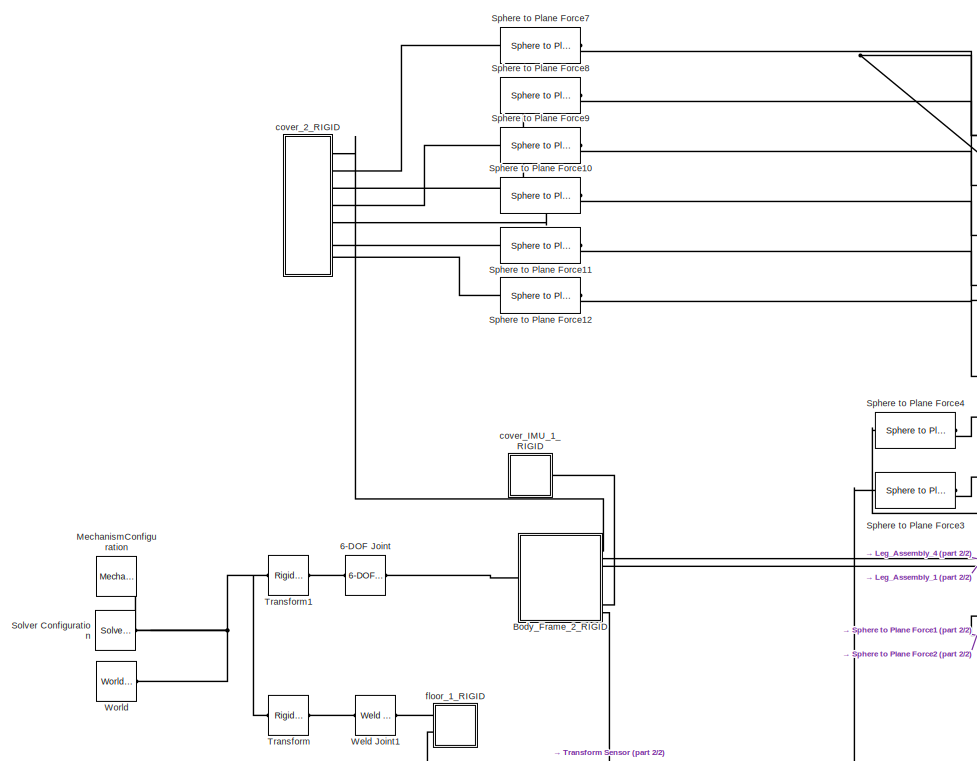
[diagram: root canvas - part 1/2, central region]
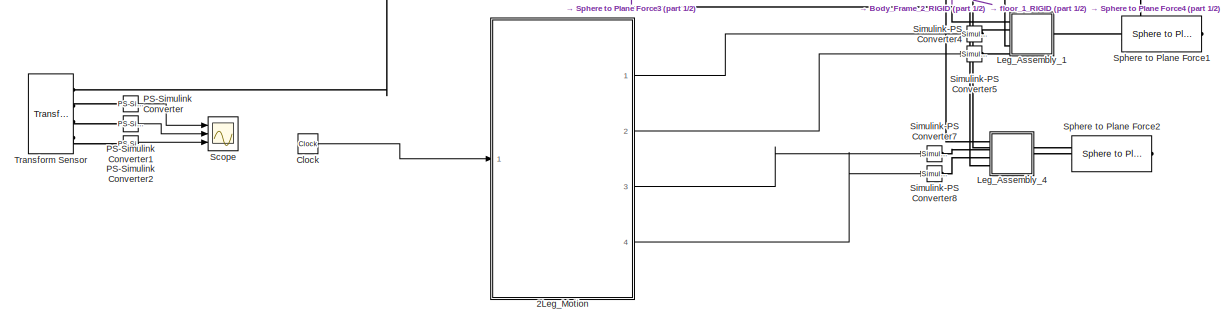
[diagram: root canvas - part 2/2, full width, bottom band]
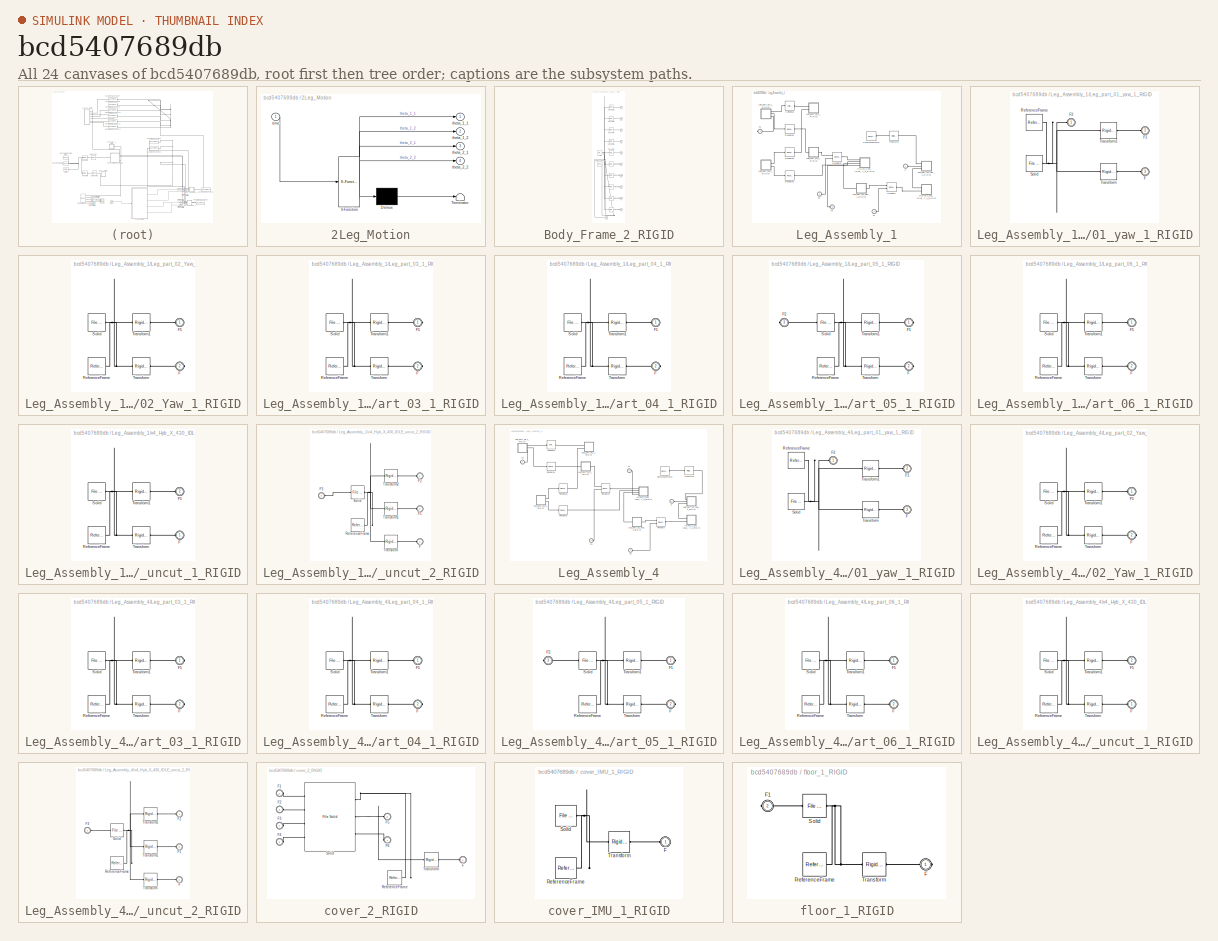
[diagram: thumbnail index - all 24 canvases of the model, root first then tree order]
MODEL slx_bcd5407689db
KIND model
CONFIG AbsTol = auto
CONFIG EnableMultiTasking = off
CONFIG FixedStep = 0.001
CONFIG InitFcn = SnapbotParameters_2leg;
CONFIG MaxStep = auto
CONFIG MinStep = auto
CONFIG PreLoadFcn = startup_Contact_Forces;
CONFIG RelTol = 1e-3
CONFIG SampleTimeConstraint = Unconstrained
CONFIG Solver = FixedStepAuto
CONFIG SolverName = FixedStepAuto
CONFIG StartTime = 0.0
CONFIG StopTime = 15
WORKSPACE source: external: MATLAB File  (data not in archive)
BLOCK [SubSystem] 2Leg_Motion
  ErrorFcn = Stateflow.Translate.translate
  PermitHierarchicalResolution = ExplicitOnly
  Ports = [1, 4]
  RequestExecContextInheritance = off
  SFBlockType = MATLAB Function
  TreatAsAtomicUnit = on
BLOCK [Demux] 2Leg_Motion/ Demux 
  Outputs = 1
  Ports = [1, 1]
BLOCK [S-Function] 2Leg_Motion/ SFunction 
  EnableBusSupport = on
  FunctionName = sf_sfun
  PortCounts = [1 5]
  Ports = [1, 5]
  SFcnIsStateOwnerBlock = off
  SFunctionDeploymentMode = off
  Tag = Stateflow S-Function 2
BLOCK [Terminator] 2Leg_Motion/ Terminator 
BLOCK [Outport] 2Leg_Motion/theta_1_1
  IconDisplay = Port number
BLOCK [Outport] 2Leg_Motion/theta_1_2
  IconDisplay = Port number
  Port = 2
BLOCK [Outport] 2Leg_Motion/theta_2_1
  IconDisplay = Port number
  Port = 3
BLOCK [Outport] 2Leg_Motion/theta_2_2
  IconDisplay = Port number
  Port = 4
BLOCK [Inport] 2Leg_Motion/time
  IconDisplay = Port number
BLOCK [Reference] 6-DOF Joint  REF=sm_lib/Joints/6-DOF Joint
  Ports = [0, 0, 0, 0, 0, 1, 1]
  SourceBlock = sm_lib/Joints/6-DOF Joint
  SourceProductBaseCode = MS
  SourceProductName = Simscape Multibody
  SourceType = 6-DOF Joint
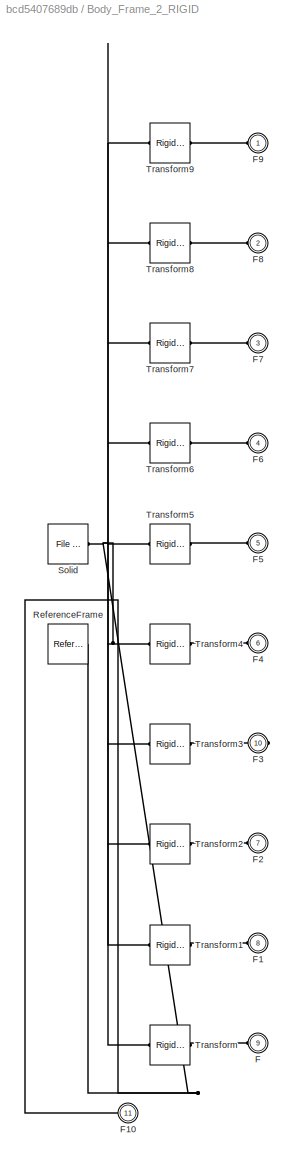
BLOCK [SubSystem] Body_Frame_2_RIGID
  Ports = [0, 0, 0, 0, 0, 10, 1]
  RequestExecContextInheritance = off
BLOCK [PMIOPort] Body_Frame_2_RIGID/F
  Port = 9
  Side = Left
BLOCK [PMIOPort] Body_Frame_2_RIGID/F1
  Port = 8
  Side = Left
BLOCK [PMIOPort] Body_Frame_2_RIGID/F10
  Port = 11
  Side = Left
BLOCK [PMIOPort] Body_Frame_2_RIGID/F2
  Port = 7
  Side = Left
BLOCK [PMIOPort] Body_Frame_2_RIGID/F3
  Port = 10
  Side = Right
BLOCK [PMIOPort] Body_Frame_2_RIGID/F4
  Port = 6
  Side = Left
BLOCK [PMIOPort] Body_Frame_2_RIGID/F5
  Port = 5
  Side = Left
BLOCK [PMIOPort] Body_Frame_2_RIGID/F6
  Port = 4
  Side = Left
BLOCK [PMIOPort] Body_Frame_2_RIGID/F7
  Port = 3
  Side = Left
BLOCK [PMIOPort] Body_Frame_2_RIGID/F8
  Port = 2
  Side = Left
BLOCK [PMIOPort] Body_Frame_2_RIGID/F9
  Side = Left
BLOCK [Reference] Body_Frame_2_RIGID/ReferenceFrame  REF=sm_lib/Frames and
Transforms/Reference
Frame
  Ports = [0, 0, 0, 0, 0, 0, 1]
  SourceBlock = sm_lib/Frames and\nTransforms/Reference\nFrame
  SourceProductBaseCode = MS
  SourceProductName = Simscape Multibody
  SourceType = Reference\nFrame
BLOCK [Reference] Body_Frame_2_RIGID/Solid  REF=sm_lib/Body Elements/File Solid
  Ports = [0, 0, 0, 0, 0, 0, 1]
  SourceBlock = sm_lib/Body Elements/File Solid
  SourceProductBaseCode = MS
  SourceProductName = Simscape Multibody
  SourceType = File Solid
BLOCK [Reference] Body_Frame_2_RIGID/Transform  REF=sm_lib/Frames and
Transforms/Rigid
Transform
  Ports = [0, 0, 0, 0, 0, 1, 1]
  SourceBlock = sm_lib/Frames and\nTransforms/Rigid\nTransform
  SourceProductBaseCode = MS
  SourceProductName = Simscape Multibody
  SourceType = Rigid\nTransform
BLOCK [Reference] Body_Frame_2_RIGID/Transform1  REF=sm_lib/Frames and
Transforms/Rigid
Transform
  Ports = [0, 0, 0, 0, 0, 1, 1]
  SourceBlock = sm_lib/Frames and\nTransforms/Rigid\nTransform
  SourceProductBaseCode = MS
  SourceProductName = Simscape Multibody
  SourceType = Rigid\nTransform
BLOCK [Reference] Body_Frame_2_RIGID/Transform2  REF=sm_lib/Frames and
Transforms/Rigid
Transform
  Ports = [0, 0, 0, 0, 0, 1, 1]
  SourceBlock = sm_lib/Frames and\nTransforms/Rigid\nTransform
  SourceProductBaseCode = MS
  SourceProductName = Simscape Multibody
  SourceType = Rigid\nTransform
BLOCK [Reference] Body_Frame_2_RIGID/Transform3  REF=sm_lib/Frames and
Transforms/Rigid
Transform
  Ports = [0, 0, 0, 0, 0, 1, 1]
  SourceBlock = sm_lib/Frames and\nTransforms/Rigid\nTransform
  SourceProductBaseCode = MS
  SourceProductName = Simscape Multibody
  SourceType = Rigid\nTransform
BLOCK [Reference] Body_Frame_2_RIGID/Transform4  REF=sm_lib/Frames and
Transforms/Rigid
Transform
  Ports = [0, 0, 0, 0, 0, 1, 1]
  SourceBlock = sm_lib/Frames and\nTransforms/Rigid\nTransform
  SourceProductBaseCode = MS
  SourceProductName = Simscape Multibody
  SourceType = Rigid\nTransform
BLOCK [Reference] Body_Frame_2_RIGID/Transform5  REF=sm_lib/Frames and
Transforms/Rigid
Transform
  Ports = [0, 0, 0, 0, 0, 1, 1]
  SourceBlock = sm_lib/Frames and\nTransforms/Rigid\nTransform
  SourceProductBaseCode = MS
  SourceProductName = Simscape Multibody
  SourceType = Rigid\nTransform
BLOCK [Reference] Body_Frame_2_RIGID/Transform6  REF=sm_lib/Frames and
Transforms/Rigid
Transform
  Ports = [0, 0, 0, 0, 0, 1, 1]
  SourceBlock = sm_lib/Frames and\nTransforms/Rigid\nTransform
  SourceProductBaseCode = MS
  SourceProductName = Simscape Multibody
  SourceType = Rigid\nTransform
BLOCK [Reference] Body_Frame_2_RIGID/Transform7  REF=sm_lib/Frames and
Transforms/Rigid
Transform
  Ports = [0, 0, 0, 0, 0, 1, 1]
  SourceBlock = sm_lib/Frames and\nTransforms/Rigid\nTransform
  SourceProductBaseCode = MS
  SourceProductName = Simscape Multibody
  SourceType = Rigid\nTransform
BLOCK [Reference] Body_Frame_2_RIGID/Transform8  REF=sm_lib/Frames and
Transforms/Rigid
Transform
  Ports = [0, 0, 0, 0, 0, 1, 1]
  SourceBlock = sm_lib/Frames and\nTransforms/Rigid\nTransform
  SourceProductBaseCode = MS
  SourceProductName = Simscape Multibody
  SourceType = Rigid\nTransform
BLOCK [Reference] Body_Frame_2_RIGID/Transform9  REF=sm_lib/Frames and
Transforms/Rigid
Transform
  Ports = [0, 0, 0, 0, 0, 1, 1]
  SourceBlock = sm_lib/Frames and\nTransforms/Rigid\nTransform
  SourceProductBaseCode = MS
  SourceProductName = Simscape Multibody
  SourceType = Rigid\nTransform
BLOCK [Clock] Clock
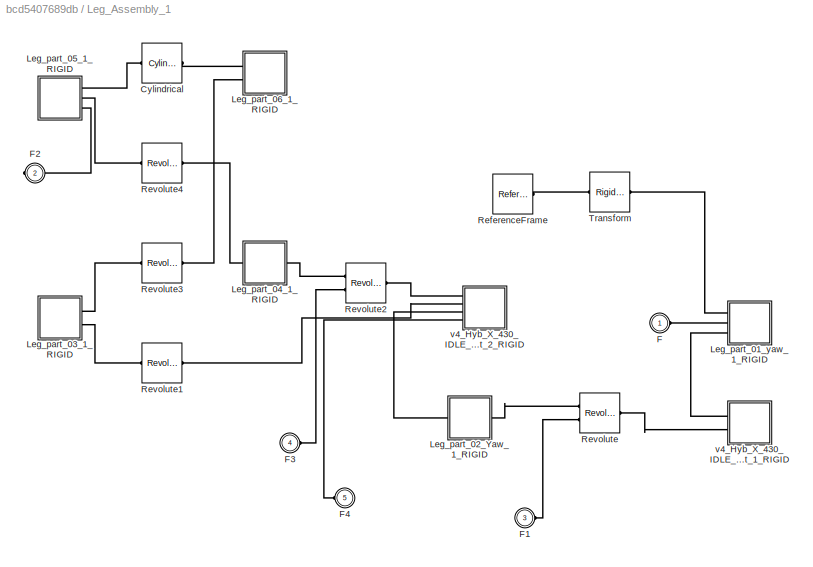
BLOCK [SubSystem] Leg_Assembly_1
  Ports = [0, 0, 0, 0, 0, 4, 1]
  RequestExecContextInheritance = off
BLOCK [Reference] Leg_Assembly_1/Cylindrical  REF=sm_lib/Joints/Cylindrical
Joint
  Ports = [0, 0, 0, 0, 0, 1, 1]
  SourceBlock = sm_lib/Joints/Cylindrical\nJoint
  SourceProductBaseCode = MS
  SourceProductName = Simscape Multibody
  SourceType = Cylindrical\nJoint
BLOCK [PMIOPort] Leg_Assembly_1/F
  Side = Left
BLOCK [PMIOPort] Leg_Assembly_1/F1
  Port = 3
  Side = Left
BLOCK [PMIOPort] Leg_Assembly_1/F2
  Port = 2
  Side = Right
BLOCK [PMIOPort] Leg_Assembly_1/F3
  Port = 4
  Side = Left
BLOCK [PMIOPort] Leg_Assembly_1/F4
  Port = 5
  Side = Left
BLOCK [SubSystem] Leg_Assembly_1/Leg_part_01_yaw_1_RIGID
  Ports = [0, 0, 0, 0, 0, 3]
  RequestExecContextInheritance = off
BLOCK [PMIOPort] Leg_Assembly_1/Leg_part_01_yaw_1_RIGID/F
  Port = 3
  Side = Left
BLOCK [PMIOPort] Leg_Assembly_1/Leg_part_01_yaw_1_RIGID/F1
  Port = 2
  Side = Left
BLOCK [PMIOPort] Leg_Assembly_1/Leg_part_01_yaw_1_RIGID/F2
  Side = Left
BLOCK [Reference] Leg_Assembly_1/Leg_part_01_yaw_1_RIGID/ReferenceFrame  REF=sm_lib/Frames and
Transforms/Reference
Frame
  Ports = [0, 0, 0, 0, 0, 0, 1]
  SourceBlock = sm_lib/Frames and\nTransforms/Reference\nFrame
  SourceProductBaseCode = MS
  SourceProductName = Simscape Multibody
  SourceType = Reference\nFrame
BLOCK [Reference] Leg_Assembly_1/Leg_part_01_yaw_1_RIGID/Solid  REF=sm_lib/Body Elements/File Solid
  Ports = [0, 0, 0, 0, 0, 0, 1]
  SourceBlock = sm_lib/Body Elements/File Solid
  SourceProductBaseCode = MS
  SourceProductName = Simscape Multibody
  SourceType = File Solid
BLOCK [Reference] Leg_Assembly_1/Leg_part_01_yaw_1_RIGID/Transform  REF=sm_lib/Frames and
Transforms/Rigid
Transform
  Ports = [0, 0, 0, 0, 0, 1, 1]
  SourceBlock = sm_lib/Frames and\nTransforms/Rigid\nTransform
  SourceProductBaseCode = MS
  SourceProductName = Simscape Multibody
  SourceType = Rigid\nTransform
BLOCK [Reference] Leg_Assembly_1/Leg_part_01_yaw_1_RIGID/Transform1  REF=sm_lib/Frames and
Transforms/Rigid
Transform
  Ports = [0, 0, 0, 0, 0, 1, 1]
  SourceBlock = sm_lib/Frames and\nTransforms/Rigid\nTransform
  SourceProductBaseCode = MS
  SourceProductName = Simscape Multibody
  SourceType = Rigid\nTransform
BLOCK [SubSystem] Leg_Assembly_1/Leg_part_02_Yaw_1_RIGID
  Ports = [0, 0, 0, 0, 0, 1, 1]
  RequestExecContextInheritance = off
BLOCK [PMIOPort] Leg_Assembly_1/Leg_part_02_Yaw_1_RIGID/F
  Port = 2
  Side = Right
BLOCK [PMIOPort] Leg_Assembly_1/Leg_part_02_Yaw_1_RIGID/F1
  Side = Left
BLOCK [Reference] Leg_Assembly_1/Leg_part_02_Yaw_1_RIGID/ReferenceFrame  REF=sm_lib/Frames and
Transforms/Reference
Frame
  Ports = [0, 0, 0, 0, 0, 0, 1]
  SourceBlock = sm_lib/Frames and\nTransforms/Reference\nFrame
  SourceProductBaseCode = MS
  SourceProductName = Simscape Multibody
  SourceType = Reference\nFrame
BLOCK [Reference] Leg_Assembly_1/Leg_part_02_Yaw_1_RIGID/Solid  REF=sm_lib/Body Elements/File Solid
  Ports = [0, 0, 0, 0, 0, 0, 1]
  SourceBlock = sm_lib/Body Elements/File Solid
  SourceProductBaseCode = MS
  SourceProductName = Simscape Multibody
  SourceType = File Solid
BLOCK [Reference] Leg_Assembly_1/Leg_part_02_Yaw_1_RIGID/Transform  REF=sm_lib/Frames and
Transforms/Rigid
Transform
  Ports = [0, 0, 0, 0, 0, 1, 1]
  SourceBlock = sm_lib/Frames and\nTransforms/Rigid\nTransform
  SourceProductBaseCode = MS
  SourceProductName = Simscape Multibody
  SourceType = Rigid\nTransform
BLOCK [Reference] Leg_Assembly_1/Leg_part_02_Yaw_1_RIGID/Transform1  REF=sm_lib/Frames and
Transforms/Rigid
Transform
  Ports = [0, 0, 0, 0, 0, 1, 1]
  SourceBlock = sm_lib/Frames and\nTransforms/Rigid\nTransform
  SourceProductBaseCode = MS
  SourceProductName = Simscape Multibody
  SourceType = Rigid\nTransform
BLOCK [SubSystem] Leg_Assembly_1/Leg_part_03_1_RIGID
  Ports = [0, 0, 0, 0, 0, 0, 2]
  RequestExecContextInheritance = off
BLOCK [PMIOPort] Leg_Assembly_1/Leg_part_03_1_RIGID/F
  Port = 2
  Side = Right
BLOCK [PMIOPort] Leg_Assembly_1/Leg_part_03_1_RIGID/F1
  Side = Right
BLOCK [Reference] Leg_Assembly_1/Leg_part_03_1_RIGID/ReferenceFrame  REF=sm_lib/Frames and
Transforms/Reference
Frame
  Ports = [0, 0, 0, 0, 0, 0, 1]
  SourceBlock = sm_lib/Frames and\nTransforms/Reference\nFrame
  SourceProductBaseCode = MS
  SourceProductName = Simscape Multibody
  SourceType = Reference\nFrame
BLOCK [Reference] Leg_Assembly_1/Leg_part_03_1_RIGID/Solid  REF=sm_lib/Body Elements/File Solid
  Ports = [0, 0, 0, 0, 0, 0, 1]
  SourceBlock = sm_lib/Body Elements/File Solid
  SourceProductBaseCode = MS
  SourceProductName = Simscape Multibody
  SourceType = File Solid
BLOCK [Reference] Leg_Assembly_1/Leg_part_03_1_RIGID/Transform  REF=sm_lib/Frames and
Transforms/Rigid
Transform
  Ports = [0, 0, 0, 0, 0, 1, 1]
  SourceBlock = sm_lib/Frames and\nTransforms/Rigid\nTransform
  SourceProductBaseCode = MS
  SourceProductName = Simscape Multibody
  SourceType = Rigid\nTransform
BLOCK [Reference] Leg_Assembly_1/Leg_part_03_1_RIGID/Transform1  REF=sm_lib/Frames and
Transforms/Rigid
Transform
  Ports = [0, 0, 0, 0, 0, 1, 1]
  SourceBlock = sm_lib/Frames and\nTransforms/Rigid\nTransform
  SourceProductBaseCode = MS
  SourceProductName = Simscape Multibody
  SourceType = Rigid\nTransform
BLOCK [SubSystem] Leg_Assembly_1/Leg_part_04_1_RIGID
  Ports = [0, 0, 0, 0, 0, 1, 1]
  RequestExecContextInheritance = off
BLOCK [PMIOPort] Leg_Assembly_1/Leg_part_04_1_RIGID/F
  Port = 2
  Side = Right
BLOCK [PMIOPort] Leg_Assembly_1/Leg_part_04_1_RIGID/F1
  Side = Left
BLOCK [Reference] Leg_Assembly_1/Leg_part_04_1_RIGID/ReferenceFrame  REF=sm_lib/Frames and
Transforms/Reference
Frame
  Ports = [0, 0, 0, 0, 0, 0, 1]
  SourceBlock = sm_lib/Frames and\nTransforms/Reference\nFrame
  SourceProductBaseCode = MS
  SourceProductName = Simscape Multibody
  SourceType = Reference\nFrame
BLOCK [Reference] Leg_Assembly_1/Leg_part_04_1_RIGID/Solid  REF=sm_lib/Body Elements/File Solid
  Ports = [0, 0, 0, 0, 0, 0, 1]
  SourceBlock = sm_lib/Body Elements/File Solid
  SourceProductBaseCode = MS
  SourceProductName = Simscape Multibody
  SourceType = File Solid
BLOCK [Reference] Leg_Assembly_1/Leg_part_04_1_RIGID/Transform  REF=sm_lib/Frames and
Transforms/Rigid
Transform
  Ports = [0, 0, 0, 0, 0, 1, 1]
  SourceBlock = sm_lib/Frames and\nTransforms/Rigid\nTransform
  SourceProductBaseCode = MS
  SourceProductName = Simscape Multibody
  SourceType = Rigid\nTransform
BLOCK [Reference] Leg_Assembly_1/Leg_part_04_1_RIGID/Transform1  REF=sm_lib/Frames and
Transforms/Rigid
Transform
  Ports = [0, 0, 0, 0, 0, 1, 1]
  SourceBlock = sm_lib/Frames and\nTransforms/Rigid\nTransform
  SourceProductBaseCode = MS
  SourceProductName = Simscape Multibody
  SourceType = Rigid\nTransform
BLOCK [SubSystem] Leg_Assembly_1/Leg_part_05_1_RIGID
  Ports = [0, 0, 0, 0, 0, 0, 3]
  RequestExecContextInheritance = off
BLOCK [PMIOPort] Leg_Assembly_1/Leg_part_05_1_RIGID/F
  Port = 2
  Side = Right
BLOCK [PMIOPort] Leg_Assembly_1/Leg_part_05_1_RIGID/F1
  Side = Right
BLOCK [PMIOPort] Leg_Assembly_1/Leg_part_05_1_RIGID/F2
  Port = 3
  Side = Right
BLOCK [Reference] Leg_Assembly_1/Leg_part_05_1_RIGID/ReferenceFrame  REF=sm_lib/Frames and
Transforms/Reference
Frame
  Ports = [0, 0, 0, 0, 0, 0, 1]
  SourceBlock = sm_lib/Frames and\nTransforms/Reference\nFrame
  SourceProductBaseCode = MS
  SourceProductName = Simscape Multibody
  SourceType = Reference\nFrame
BLOCK [Reference] Leg_Assembly_1/Leg_part_05_1_RIGID/Solid  REF=sm_lib/Body Elements/File Solid
  Ports = [0, 0, 0, 0, 0, 1, 1]
  SourceBlock = sm_lib/Body Elements/File Solid
  SourceProductBaseCode = MS
  SourceProductName = Simscape Multibody
  SourceType = File Solid
BLOCK [Reference] Leg_Assembly_1/Leg_part_05_1_RIGID/Transform  REF=sm_lib/Frames and
Transforms/Rigid
Transform
  Ports = [0, 0, 0, 0, 0, 1, 1]
  SourceBlock = sm_lib/Frames and\nTransforms/Rigid\nTransform
  SourceProductBaseCode = MS
  SourceProductName = Simscape Multibody
  SourceType = Rigid\nTransform
BLOCK [Reference] Leg_Assembly_1/Leg_part_05_1_RIGID/Transform1  REF=sm_lib/Frames and
Transforms/Rigid
Transform
  Ports = [0, 0, 0, 0, 0, 1, 1]
  SourceBlock = sm_lib/Frames and\nTransforms/Rigid\nTransform
  SourceProductBaseCode = MS
  SourceProductName = Simscape Multibody
  SourceType = Rigid\nTransform
BLOCK [SubSystem] Leg_Assembly_1/Leg_part_06_1_RIGID
  Ports = [0, 0, 0, 0, 0, 2]
  RequestExecContextInheritance = off
BLOCK [PMIOPort] Leg_Assembly_1/Leg_part_06_1_RIGID/F
  Port = 2
  Side = Left
BLOCK [PMIOPort] Leg_Assembly_1/Leg_part_06_1_RIGID/F1
  Side = Left
BLOCK [Reference] Leg_Assembly_1/Leg_part_06_1_RIGID/ReferenceFrame  REF=sm_lib/Frames and
Transforms/Reference
Frame
  Ports = [0, 0, 0, 0, 0, 0, 1]
  SourceBlock = sm_lib/Frames and\nTransforms/Reference\nFrame
  SourceProductBaseCode = MS
  SourceProductName = Simscape Multibody
  SourceType = Reference\nFrame
BLOCK [Reference] Leg_Assembly_1/Leg_part_06_1_RIGID/Solid  REF=sm_lib/Body Elements/File Solid
  Ports = [0, 0, 0, 0, 0, 0, 1]
  SourceBlock = sm_lib/Body Elements/File Solid
  SourceProductBaseCode = MS
  SourceProductName = Simscape Multibody
  SourceType = File Solid
BLOCK [Reference] Leg_Assembly_1/Leg_part_06_1_RIGID/Transform  REF=sm_lib/Frames and
Transforms/Rigid
Transform
  Ports = [0, 0, 0, 0, 0, 1, 1]
  SourceBlock = sm_lib/Frames and\nTransforms/Rigid\nTransform
  SourceProductBaseCode = MS
  SourceProductName = Simscape Multibody
  SourceType = Rigid\nTransform
BLOCK [Reference] Leg_Assembly_1/Leg_part_06_1_RIGID/Transform1  REF=sm_lib/Frames and
Transforms/Rigid
Transform
  Ports = [0, 0, 0, 0, 0, 1, 1]
  SourceBlock = sm_lib/Frames and\nTransforms/Rigid\nTransform
  SourceProductBaseCode = MS
  SourceProductName = Simscape Multibody
  SourceType = Rigid\nTransform
BLOCK [Reference] Leg_Assembly_1/ReferenceFrame  REF=sm_lib/Frames and
Transforms/Reference
Frame
  Ports = [0, 0, 0, 0, 0, 0, 1]
  SourceBlock = sm_lib/Frames and\nTransforms/Reference\nFrame
  SourceProductBaseCode = MS
  SourceProductName = Simscape Multibody
  SourceType = Reference\nFrame
BLOCK [Reference] Leg_Assembly_1/Revolute  REF=sm_lib/Joints/Revolute Joint
  Ports = [0, 0, 0, 0, 0, 2, 1]
  SourceBlock = sm_lib/Joints/Revolute Joint
  SourceProductBaseCode = MS
  SourceProductName = Simscape Multibody
  SourceType = Revolute Joint
BLOCK [Reference] Leg_Assembly_1/Revolute1  REF=sm_lib/Joints/Revolute Joint
  Ports = [0, 0, 0, 0, 0, 1, 1]
  SourceBlock = sm_lib/Joints/Revolute Joint
  SourceProductBaseCode = MS
  SourceProductName = Simscape Multibody
  SourceType = Revolute Joint
BLOCK [Reference] Leg_Assembly_1/Revolute2  REF=sm_lib/Joints/Revolute Joint
  Ports = [0, 0, 0, 0, 0, 2, 1]
  SourceBlock = sm_lib/Joints/Revolute Joint
  SourceProductBaseCode = MS
  SourceProductName = Simscape Multibody
  SourceType = Revolute Joint
BLOCK [Reference] Leg_Assembly_1/Revolute3  REF=sm_lib/Joints/Revolute Joint
  Ports = [0, 0, 0, 0, 0, 1, 1]
  SourceBlock = sm_lib/Joints/Revolute Joint
  SourceProductBaseCode = MS
  SourceProductName = Simscape Multibody
  SourceType = Revolute Joint
BLOCK [Reference] Leg_Assembly_1/Revolute4  REF=sm_lib/Joints/Revolute Joint
  Ports = [0, 0, 0, 0, 0, 1, 1]
  SourceBlock = sm_lib/Joints/Revolute Joint
  SourceProductBaseCode = MS
  SourceProductName = Simscape Multibody
  SourceType = Revolute Joint
BLOCK [Reference] Leg_Assembly_1/Transform  REF=sm_lib/Frames and
Transforms/Rigid
Transform
  Ports = [0, 0, 0, 0, 0, 1, 1]
  SourceBlock = sm_lib/Frames and\nTransforms/Rigid\nTransform
  SourceProductBaseCode = MS
  SourceProductName = Simscape Multibody
  SourceType = Rigid\nTransform
BLOCK [SubSystem] Leg_Assembly_1/v4_Hyb_X_430_IDLE_uncut_1_RIGID
  Ports = [0, 0, 0, 0, 0, 2]
  RequestExecContextInheritance = off
BLOCK [PMIOPort] Leg_Assembly_1/v4_Hyb_X_430_IDLE_uncut_1_RIGID/F
  Side = Left
BLOCK [PMIOPort] Leg_Assembly_1/v4_Hyb_X_430_IDLE_uncut_1_RIGID/F1
  Port = 2
  Side = Left
BLOCK [Reference] Leg_Assembly_1/v4_Hyb_X_430_IDLE_uncut_1_RIGID/ReferenceFrame  REF=sm_lib/Frames and
Transforms/Reference
Frame
  Ports = [0, 0, 0, 0, 0, 0, 1]
  SourceBlock = sm_lib/Frames and\nTransforms/Reference\nFrame
  SourceProductBaseCode = MS
  SourceProductName = Simscape Multibody
  SourceType = Reference\nFrame
BLOCK [Reference] Leg_Assembly_1/v4_Hyb_X_430_IDLE_uncut_1_RIGID/Solid  REF=sm_lib/Body Elements/File Solid
  Ports = [0, 0, 0, 0, 0, 1, 1]
  SourceBlock = sm_lib/Body Elements/File Solid
  SourceProductBaseCode = MS
  SourceProductName = Simscape Multibody
  SourceType = File Solid
BLOCK [Reference] Leg_Assembly_1/v4_Hyb_X_430_IDLE_uncut_1_RIGID/Transform  REF=sm_lib/Frames and
Transforms/Rigid
Transform
  Ports = [0, 0, 0, 0, 0, 1, 1]
  SourceBlock = sm_lib/Frames and\nTransforms/Rigid\nTransform
  SourceProductBaseCode = MS
  SourceProductName = Simscape Multibody
  SourceType = Rigid\nTransform
BLOCK [Reference] Leg_Assembly_1/v4_Hyb_X_430_IDLE_uncut_1_RIGID/Transform1  REF=sm_lib/Frames and
Transforms/Rigid
Transform
  Ports = [0, 0, 0, 0, 0, 1, 1]
  SourceBlock = sm_lib/Frames and\nTransforms/Rigid\nTransform
  SourceProductBaseCode = MS
  SourceProductName = Simscape Multibody
  SourceType = Rigid\nTransform
BLOCK [SubSystem] Leg_Assembly_1/v4_Hyb_X_430_IDLE_uncut_2_RIGID
  Ports = [0, 0, 0, 0, 0, 4]
  RequestExecContextInheritance = off
BLOCK [PMIOPort] Leg_Assembly_1/v4_Hyb_X_430_IDLE_uncut_2_RIGID/F
  Port = 3
  Side = Left
BLOCK [PMIOPort] Leg_Assembly_1/v4_Hyb_X_430_IDLE_uncut_2_RIGID/F1
  Port = 2
  Side = Left
BLOCK [PMIOPort] Leg_Assembly_1/v4_Hyb_X_430_IDLE_uncut_2_RIGID/F2
  Side = Left
BLOCK [PMIOPort] Leg_Assembly_1/v4_Hyb_X_430_IDLE_uncut_2_RIGID/F3
  Port = 4
  Side = Left
BLOCK [Reference] Leg_Assembly_1/v4_Hyb_X_430_IDLE_uncut_2_RIGID/ReferenceFrame  REF=sm_lib/Frames and
Transforms/Reference
Frame
  Ports = [0, 0, 0, 0, 0, 0, 1]
  SourceBlock = sm_lib/Frames and\nTransforms/Reference\nFrame
  SourceProductBaseCode = MS
  SourceProductName = Simscape Multibody
  SourceType = Reference\nFrame
BLOCK [Reference] Leg_Assembly_1/v4_Hyb_X_430_IDLE_uncut_2_RIGID/Solid  REF=sm_lib/Body Elements/File Solid
  Ports = [0, 0, 0, 0, 0, 1, 1]
  SourceBlock = sm_lib/Body Elements/File Solid
  SourceProductBaseCode = MS
  SourceProductName = Simscape Multibody
  SourceType = File Solid
BLOCK [Reference] Leg_Assembly_1/v4_Hyb_X_430_IDLE_uncut_2_RIGID/Transform  REF=sm_lib/Frames and
Transforms/Rigid
Transform
  Ports = [0, 0, 0, 0, 0, 1, 1]
  SourceBlock = sm_lib/Frames and\nTransforms/Rigid\nTransform
  SourceProductBaseCode = MS
  SourceProductName = Simscape Multibody
  SourceType = Rigid\nTransform
BLOCK [Reference] Leg_Assembly_1/v4_Hyb_X_430_IDLE_uncut_2_RIGID/Transform1  REF=sm_lib/Frames and
Transforms/Rigid
Transform
  Ports = [0, 0, 0, 0, 0, 1, 1]
  SourceBlock = sm_lib/Frames and\nTransforms/Rigid\nTransform
  SourceProductBaseCode = MS
  SourceProductName = Simscape Multibody
  SourceType = Rigid\nTransform
BLOCK [Reference] Leg_Assembly_1/v4_Hyb_X_430_IDLE_uncut_2_RIGID/Transform2  REF=sm_lib/Frames and
Transforms/Rigid
Transform
  Ports = [0, 0, 0, 0, 0, 1, 1]
  SourceBlock = sm_lib/Frames and\nTransforms/Rigid\nTransform
  SourceProductBaseCode = MS
  SourceProductName = Simscape Multibody
  SourceType = Rigid\nTransform
BLOCK [SubSystem] Leg_Assembly_4
  Ports = [0, 0, 0, 0, 0, 4, 1]
  RequestExecContextInheritance = off
BLOCK [Reference] Leg_Assembly_4/Cylindrical  REF=sm_lib/Joints/Cylindrical
Joint
  Ports = [0, 0, 0, 0, 0, 1, 1]
  SourceBlock = sm_lib/Joints/Cylindrical\nJoint
  SourceProductBaseCode = MS
  SourceProductName = Simscape Multibody
  SourceType = Cylindrical\nJoint
BLOCK [PMIOPort] Leg_Assembly_4/F
  Side = Left
BLOCK [PMIOPort] Leg_Assembly_4/F1
  Port = 3
  Side = Left
BLOCK [PMIOPort] Leg_Assembly_4/F2
  Port = 2
  Side = Right
BLOCK [PMIOPort] Leg_Assembly_4/F3
  Port = 4
  Side = Left
BLOCK [PMIOPort] Leg_Assembly_4/F4
  Port = 5
  Side = Left
BLOCK [SubSystem] Leg_Assembly_4/Leg_part_01_yaw_1_RIGID
  Ports = [0, 0, 0, 0, 0, 3]
  RequestExecContextInheritance = off
BLOCK [PMIOPort] Leg_Assembly_4/Leg_part_01_yaw_1_RIGID/F
  Port = 3
  Side = Left
BLOCK [PMIOPort] Leg_Assembly_4/Leg_part_01_yaw_1_RIGID/F1
  Port = 2
  Side = Left
BLOCK [PMIOPort] Leg_Assembly_4/Leg_part_01_yaw_1_RIGID/F2
  Side = Left
BLOCK [Reference] Leg_Assembly_4/Leg_part_01_yaw_1_RIGID/ReferenceFrame  REF=sm_lib/Frames and
Transforms/Reference
Frame
  Ports = [0, 0, 0, 0, 0, 0, 1]
  SourceBlock = sm_lib/Frames and\nTransforms/Reference\nFrame
  SourceProductBaseCode = MS
  SourceProductName = Simscape Multibody
  SourceType = Reference\nFrame
BLOCK [Reference] Leg_Assembly_4/Leg_part_01_yaw_1_RIGID/Solid  REF=sm_lib/Body Elements/File Solid
  Ports = [0, 0, 0, 0, 0, 0, 1]
  SourceBlock = sm_lib/Body Elements/File Solid
  SourceProductBaseCode = MS
  SourceProductName = Simscape Multibody
  SourceType = File Solid
BLOCK [Reference] Leg_Assembly_4/Leg_part_01_yaw_1_RIGID/Transform  REF=sm_lib/Frames and
Transforms/Rigid
Transform
  Ports = [0, 0, 0, 0, 0, 1, 1]
  SourceBlock = sm_lib/Frames and\nTransforms/Rigid\nTransform
  SourceProductBaseCode = MS
  SourceProductName = Simscape Multibody
  SourceType = Rigid\nTransform
BLOCK [Reference] Leg_Assembly_4/Leg_part_01_yaw_1_RIGID/Transform1  REF=sm_lib/Frames and
Transforms/Rigid
Transform
  Ports = [0, 0, 0, 0, 0, 1, 1]
  SourceBlock = sm_lib/Frames and\nTransforms/Rigid\nTransform
  SourceProductBaseCode = MS
  SourceProductName = Simscape Multibody
  SourceType = Rigid\nTransform
BLOCK [SubSystem] Leg_Assembly_4/Leg_part_02_Yaw_1_RIGID
  Ports = [0, 0, 0, 0, 0, 1, 1]
  RequestExecContextInheritance = off
BLOCK [PMIOPort] Leg_Assembly_4/Leg_part_02_Yaw_1_RIGID/F
  Port = 2
  Side = Right
BLOCK [PMIOPort] Leg_Assembly_4/Leg_part_02_Yaw_1_RIGID/F1
  Side = Left
BLOCK [Reference] Leg_Assembly_4/Leg_part_02_Yaw_1_RIGID/ReferenceFrame  REF=sm_lib/Frames and
Transforms/Reference
Frame
  Ports = [0, 0, 0, 0, 0, 0, 1]
  SourceBlock = sm_lib/Frames and\nTransforms/Reference\nFrame
  SourceProductBaseCode = MS
  SourceProductName = Simscape Multibody
  SourceType = Reference\nFrame
BLOCK [Reference] Leg_Assembly_4/Leg_part_02_Yaw_1_RIGID/Solid  REF=sm_lib/Body Elements/File Solid
  Ports = [0, 0, 0, 0, 0, 0, 1]
  SourceBlock = sm_lib/Body Elements/File Solid
  SourceProductBaseCode = MS
  SourceProductName = Simscape Multibody
  SourceType = File Solid
BLOCK [Reference] Leg_Assembly_4/Leg_part_02_Yaw_1_RIGID/Transform  REF=sm_lib/Frames and
Transforms/Rigid
Transform
  Ports = [0, 0, 0, 0, 0, 1, 1]
  SourceBlock = sm_lib/Frames and\nTransforms/Rigid\nTransform
  SourceProductBaseCode = MS
  SourceProductName = Simscape Multibody
  SourceType = Rigid\nTransform
BLOCK [Reference] Leg_Assembly_4/Leg_part_02_Yaw_1_RIGID/Transform1  REF=sm_lib/Frames and
Transforms/Rigid
Transform
  Ports = [0, 0, 0, 0, 0, 1, 1]
  SourceBlock = sm_lib/Frames and\nTransforms/Rigid\nTransform
  SourceProductBaseCode = MS
  SourceProductName = Simscape Multibody
  SourceType = Rigid\nTransform
BLOCK [SubSystem] Leg_Assembly_4/Leg_part_03_1_RIGID
  Ports = [0, 0, 0, 0, 0, 0, 2]
  RequestExecContextInheritance = off
BLOCK [PMIOPort] Leg_Assembly_4/Leg_part_03_1_RIGID/F
  Port = 2
  Side = Right
BLOCK [PMIOPort] Leg_Assembly_4/Leg_part_03_1_RIGID/F1
  Side = Right
BLOCK [Reference] Leg_Assembly_4/Leg_part_03_1_RIGID/ReferenceFrame  REF=sm_lib/Frames and
Transforms/Reference
Frame
  Ports = [0, 0, 0, 0, 0, 0, 1]
  SourceBlock = sm_lib/Frames and\nTransforms/Reference\nFrame
  SourceProductBaseCode = MS
  SourceProductName = Simscape Multibody
  SourceType = Reference\nFrame
BLOCK [Reference] Leg_Assembly_4/Leg_part_03_1_RIGID/Solid  REF=sm_lib/Body Elements/File Solid
  Ports = [0, 0, 0, 0, 0, 0, 1]
  SourceBlock = sm_lib/Body Elements/File Solid
  SourceProductBaseCode = MS
  SourceProductName = Simscape Multibody
  SourceType = File Solid
BLOCK [Reference] Leg_Assembly_4/Leg_part_03_1_RIGID/Transform  REF=sm_lib/Frames and
Transforms/Rigid
Transform
  Ports = [0, 0, 0, 0, 0, 1, 1]
  SourceBlock = sm_lib/Frames and\nTransforms/Rigid\nTransform
  SourceProductBaseCode = MS
  SourceProductName = Simscape Multibody
  SourceType = Rigid\nTransform
BLOCK [Reference] Leg_Assembly_4/Leg_part_03_1_RIGID/Transform1  REF=sm_lib/Frames and
Transforms/Rigid
Transform
  Ports = [0, 0, 0, 0, 0, 1, 1]
  SourceBlock = sm_lib/Frames and\nTransforms/Rigid\nTransform
  SourceProductBaseCode = MS
  SourceProductName = Simscape Multibody
  SourceType = Rigid\nTransform
BLOCK [SubSystem] Leg_Assembly_4/Leg_part_04_1_RIGID
  Ports = [0, 0, 0, 0, 0, 1, 1]
  RequestExecContextInheritance = off
BLOCK [PMIOPort] Leg_Assembly_4/Leg_part_04_1_RIGID/F
  Port = 2
  Side = Right
BLOCK [PMIOPort] Leg_Assembly_4/Leg_part_04_1_RIGID/F1
  Side = Left
BLOCK [Reference] Leg_Assembly_4/Leg_part_04_1_RIGID/ReferenceFrame  REF=sm_lib/Frames and
Transforms/Reference
Frame
  Ports = [0, 0, 0, 0, 0, 0, 1]
  SourceBlock = sm_lib/Frames and\nTransforms/Reference\nFrame
  SourceProductBaseCode = MS
  SourceProductName = Simscape Multibody
  SourceType = Reference\nFrame
BLOCK [Reference] Leg_Assembly_4/Leg_part_04_1_RIGID/Solid  REF=sm_lib/Body Elements/File Solid
  Ports = [0, 0, 0, 0, 0, 0, 1]
  SourceBlock = sm_lib/Body Elements/File Solid
  SourceProductBaseCode = MS
  SourceProductName = Simscape Multibody
  SourceType = File Solid
BLOCK [Reference] Leg_Assembly_4/Leg_part_04_1_RIGID/Transform  REF=sm_lib/Frames and
Transforms/Rigid
Transform
  Ports = [0, 0, 0, 0, 0, 1, 1]
  SourceBlock = sm_lib/Frames and\nTransforms/Rigid\nTransform
  SourceProductBaseCode = MS
  SourceProductName = Simscape Multibody
  SourceType = Rigid\nTransform
BLOCK [Reference] Leg_Assembly_4/Leg_part_04_1_RIGID/Transform1  REF=sm_lib/Frames and
Transforms/Rigid
Transform
  Ports = [0, 0, 0, 0, 0, 1, 1]
  SourceBlock = sm_lib/Frames and\nTransforms/Rigid\nTransform
  SourceProductBaseCode = MS
  SourceProductName = Simscape Multibody
  SourceType = Rigid\nTransform
BLOCK [SubSystem] Leg_Assembly_4/Leg_part_05_1_RIGID
  Ports = [0, 0, 0, 0, 0, 0, 3]
  RequestExecContextInheritance = off
BLOCK [PMIOPort] Leg_Assembly_4/Leg_part_05_1_RIGID/F
  Port = 2
  Side = Right
BLOCK [PMIOPort] Leg_Assembly_4/Leg_part_05_1_RIGID/F1
  Side = Right
BLOCK [PMIOPort] Leg_Assembly_4/Leg_part_05_1_RIGID/F2
  Port = 3
  Side = Right
BLOCK [Reference] Leg_Assembly_4/Leg_part_05_1_RIGID/ReferenceFrame  REF=sm_lib/Frames and
Transforms/Reference
Frame
  Ports = [0, 0, 0, 0, 0, 0, 1]
  SourceBlock = sm_lib/Frames and\nTransforms/Reference\nFrame
  SourceProductBaseCode = MS
  SourceProductName = Simscape Multibody
  SourceType = Reference\nFrame
BLOCK [Reference] Leg_Assembly_4/Leg_part_05_1_RIGID/Solid  REF=sm_lib/Body Elements/File Solid
  Ports = [0, 0, 0, 0, 0, 1, 1]
  SourceBlock = sm_lib/Body Elements/File Solid
  SourceProductBaseCode = MS
  SourceProductName = Simscape Multibody
  SourceType = File Solid
BLOCK [Reference] Leg_Assembly_4/Leg_part_05_1_RIGID/Transform  REF=sm_lib/Frames and
Transforms/Rigid
Transform
  Ports = [0, 0, 0, 0, 0, 1, 1]
  SourceBlock = sm_lib/Frames and\nTransforms/Rigid\nTransform
  SourceProductBaseCode = MS
  SourceProductName = Simscape Multibody
  SourceType = Rigid\nTransform
BLOCK [Reference] Leg_Assembly_4/Leg_part_05_1_RIGID/Transform1  REF=sm_lib/Frames and
Transforms/Rigid
Transform
  Ports = [0, 0, 0, 0, 0, 1, 1]
  SourceBlock = sm_lib/Frames and\nTransforms/Rigid\nTransform
  SourceProductBaseCode = MS
  SourceProductName = Simscape Multibody
  SourceType = Rigid\nTransform
BLOCK [SubSystem] Leg_Assembly_4/Leg_part_06_1_RIGID
  Ports = [0, 0, 0, 0, 0, 2]
  RequestExecContextInheritance = off
BLOCK [PMIOPort] Leg_Assembly_4/Leg_part_06_1_RIGID/F
  Port = 2
  Side = Left
BLOCK [PMIOPort] Leg_Assembly_4/Leg_part_06_1_RIGID/F1
  Side = Left
BLOCK [Reference] Leg_Assembly_4/Leg_part_06_1_RIGID/ReferenceFrame  REF=sm_lib/Frames and
Transforms/Reference
Frame
  Ports = [0, 0, 0, 0, 0, 0, 1]
  SourceBlock = sm_lib/Frames and\nTransforms/Reference\nFrame
  SourceProductBaseCode = MS
  SourceProductName = Simscape Multibody
  SourceType = Reference\nFrame
BLOCK [Reference] Leg_Assembly_4/Leg_part_06_1_RIGID/Solid  REF=sm_lib/Body Elements/File Solid
  Ports = [0, 0, 0, 0, 0, 0, 1]
  SourceBlock = sm_lib/Body Elements/File Solid
  SourceProductBaseCode = MS
  SourceProductName = Simscape Multibody
  SourceType = File Solid
BLOCK [Reference] Leg_Assembly_4/Leg_part_06_1_RIGID/Transform  REF=sm_lib/Frames and
Transforms/Rigid
Transform
  Ports = [0, 0, 0, 0, 0, 1, 1]
  SourceBlock = sm_lib/Frames and\nTransforms/Rigid\nTransform
  SourceProductBaseCode = MS
  SourceProductName = Simscape Multibody
  SourceType = Rigid\nTransform
BLOCK [Reference] Leg_Assembly_4/Leg_part_06_1_RIGID/Transform1  REF=sm_lib/Frames and
Transforms/Rigid
Transform
  Ports = [0, 0, 0, 0, 0, 1, 1]
  SourceBlock = sm_lib/Frames and\nTransforms/Rigid\nTransform
  SourceProductBaseCode = MS
  SourceProductName = Simscape Multibody
  SourceType = Rigid\nTransform
BLOCK [Reference] Leg_Assembly_4/ReferenceFrame  REF=sm_lib/Frames and
Transforms/Reference
Frame
  Ports = [0, 0, 0, 0, 0, 0, 1]
  SourceBlock = sm_lib/Frames and\nTransforms/Reference\nFrame
  SourceProductBaseCode = MS
  SourceProductName = Simscape Multibody
  SourceType = Reference\nFrame
BLOCK [Reference] Leg_Assembly_4/Revolute  REF=sm_lib/Joints/Revolute Joint
  Ports = [0, 0, 0, 0, 0, 2, 1]
  SourceBlock = sm_lib/Joints/Revolute Joint
  SourceProductBaseCode = MS
  SourceProductName = Simscape Multibody
  SourceType = Revolute Joint
BLOCK [Reference] Leg_Assembly_4/Revolute1  REF=sm_lib/Joints/Revolute Joint
  Ports = [0, 0, 0, 0, 0, 1, 1]
  SourceBlock = sm_lib/Joints/Revolute Joint
  SourceProductBaseCode = MS
  SourceProductName = Simscape Multibody
  SourceType = Revolute Joint
BLOCK [Reference] Leg_Assembly_4/Revolute2  REF=sm_lib/Joints/Revolute Joint
  Ports = [0, 0, 0, 0, 0, 2, 1]
  SourceBlock = sm_lib/Joints/Revolute Joint
  SourceProductBaseCode = MS
  SourceProductName = Simscape Multibody
  SourceType = Revolute Joint
BLOCK [Reference] Leg_Assembly_4/Revolute3  REF=sm_lib/Joints/Revolute Joint
  Ports = [0, 0, 0, 0, 0, 1, 1]
  SourceBlock = sm_lib/Joints/Revolute Joint
  SourceProductBaseCode = MS
  SourceProductName = Simscape Multibody
  SourceType = Revolute Joint
BLOCK [Reference] Leg_Assembly_4/Revolute4  REF=sm_lib/Joints/Revolute Joint
  Ports = [0, 0, 0, 0, 0, 1, 1]
  SourceBlock = sm_lib/Joints/Revolute Joint
  SourceProductBaseCode = MS
  SourceProductName = Simscape Multibody
  SourceType = Revolute Joint
BLOCK [Reference] Leg_Assembly_4/Transform  REF=sm_lib/Frames and
Transforms/Rigid
Transform
  Ports = [0, 0, 0, 0, 0, 1, 1]
  SourceBlock = sm_lib/Frames and\nTransforms/Rigid\nTransform
  SourceProductBaseCode = MS
  SourceProductName = Simscape Multibody
  SourceType = Rigid\nTransform
BLOCK [SubSystem] Leg_Assembly_4/v4_Hyb_X_430_IDLE_uncut_1_RIGID
  Ports = [0, 0, 0, 0, 0, 2]
  RequestExecContextInheritance = off
BLOCK [PMIOPort] Leg_Assembly_4/v4_Hyb_X_430_IDLE_uncut_1_RIGID/F
  Side = Left
BLOCK [PMIOPort] Leg_Assembly_4/v4_Hyb_X_430_IDLE_uncut_1_RIGID/F1
  Port = 2
  Side = Left
BLOCK [Reference] Leg_Assembly_4/v4_Hyb_X_430_IDLE_uncut_1_RIGID/ReferenceFrame  REF=sm_lib/Frames and
Transforms/Reference
Frame
  Ports = [0, 0, 0, 0, 0, 0, 1]
  SourceBlock = sm_lib/Frames and\nTransforms/Reference\nFrame
  SourceProductBaseCode = MS
  SourceProductName = Simscape Multibody
  SourceType = Reference\nFrame
BLOCK [Reference] Leg_Assembly_4/v4_Hyb_X_430_IDLE_uncut_1_RIGID/Solid  REF=sm_lib/Body Elements/File Solid
  Ports = [0, 0, 0, 0, 0, 0, 1]
  SourceBlock = sm_lib/Body Elements/File Solid
  SourceProductBaseCode = MS
  SourceProductName = Simscape Multibody
  SourceType = File Solid
BLOCK [Reference] Leg_Assembly_4/v4_Hyb_X_430_IDLE_uncut_1_RIGID/Transform  REF=sm_lib/Frames and
Transforms/Rigid
Transform
  Ports = [0, 0, 0, 0, 0, 1, 1]
  SourceBlock = sm_lib/Frames and\nTransforms/Rigid\nTransform
  SourceProductBaseCode = MS
  SourceProductName = Simscape Multibody
  SourceType = Rigid\nTransform
BLOCK [Reference] Leg_Assembly_4/v4_Hyb_X_430_IDLE_uncut_1_RIGID/Transform1  REF=sm_lib/Frames and
Transforms/Rigid
Transform
  Ports = [0, 0, 0, 0, 0, 1, 1]
  SourceBlock = sm_lib/Frames and\nTransforms/Rigid\nTransform
  SourceProductBaseCode = MS
  SourceProductName = Simscape Multibody
  SourceType = Rigid\nTransform
BLOCK [SubSystem] Leg_Assembly_4/v4_Hyb_X_430_IDLE_uncut_2_RIGID
  Ports = [0, 0, 0, 0, 0, 4]
  RequestExecContextInheritance = off
BLOCK [PMIOPort] Leg_Assembly_4/v4_Hyb_X_430_IDLE_uncut_2_RIGID/F
  Port = 3
  Side = Left
BLOCK [PMIOPort] Leg_Assembly_4/v4_Hyb_X_430_IDLE_uncut_2_RIGID/F1
  Port = 2
  Side = Left
BLOCK [PMIOPort] Leg_Assembly_4/v4_Hyb_X_430_IDLE_uncut_2_RIGID/F2
  Side = Left
BLOCK [PMIOPort] Leg_Assembly_4/v4_Hyb_X_430_IDLE_uncut_2_RIGID/F3
  Port = 4
  Side = Left
BLOCK [Reference] Leg_Assembly_4/v4_Hyb_X_430_IDLE_uncut_2_RIGID/ReferenceFrame  REF=sm_lib/Frames and
Transforms/Reference
Frame
  Ports = [0, 0, 0, 0, 0, 0, 1]
  SourceBlock = sm_lib/Frames and\nTransforms/Reference\nFrame
  SourceProductBaseCode = MS
  SourceProductName = Simscape Multibody
  SourceType = Reference\nFrame
BLOCK [Reference] Leg_Assembly_4/v4_Hyb_X_430_IDLE_uncut_2_RIGID/Solid  REF=sm_lib/Body Elements/File Solid
  Ports = [0, 0, 0, 0, 0, 1, 1]
  SourceBlock = sm_lib/Body Elements/File Solid
  SourceProductBaseCode = MS
  SourceProductName = Simscape Multibody
  SourceType = File Solid
BLOCK [Reference] Leg_Assembly_4/v4_Hyb_X_430_IDLE_uncut_2_RIGID/Transform  REF=sm_lib/Frames and
Transforms/Rigid
Transform
  Ports = [0, 0, 0, 0, 0, 1, 1]
  SourceBlock = sm_lib/Frames and\nTransforms/Rigid\nTransform
  SourceProductBaseCode = MS
  SourceProductName = Simscape Multibody
  SourceType = Rigid\nTransform
BLOCK [Reference] Leg_Assembly_4/v4_Hyb_X_430_IDLE_uncut_2_RIGID/Transform1  REF=sm_lib/Frames and
Transforms/Rigid
Transform
  Ports = [0, 0, 0, 0, 0, 1, 1]
  SourceBlock = sm_lib/Frames and\nTransforms/Rigid\nTransform
  SourceProductBaseCode = MS
  SourceProductName = Simscape Multibody
  SourceType = Rigid\nTransform
BLOCK [Reference] Leg_Assembly_4/v4_Hyb_X_430_IDLE_uncut_2_RIGID/Transform2  REF=sm_lib/Frames and
Transforms/Rigid
Transform
  Ports = [0, 0, 0, 0, 0, 1, 1]
  SourceBlock = sm_lib/Frames and\nTransforms/Rigid\nTransform
  SourceProductBaseCode = MS
  SourceProductName = Simscape Multibody
  SourceType = Rigid\nTransform
BLOCK [Reference] MechanismConfiguration  REF=sm_lib/Utilities/Mechanism
Configuration
  Ports = [0, 0, 0, 0, 0, 0, 1]
  SourceBlock = sm_lib/Utilities/Mechanism\nConfiguration
  SourceProductBaseCode = MS
  SourceProductName = Simscape Multibody
  SourceType = Mechanism\nConfiguration
BLOCK [Reference] PS-Simulink Converter  REF=nesl_utility/PS-Simulink
Converter
  Ports = [0, 1, 0, 0, 0, 1]
  SourceBlock = nesl_utility/PS-Simulink\nConverter
  SourceProductBaseCode = SS
  SourceProductName = Simscape
  SourceType = PS-Simulink\nConverter
BLOCK [Reference] PS-Simulink Converter1  REF=nesl_utility/PS-Simulink
Converter
  Ports = [0, 1, 0, 0, 0, 1]
  SourceBlock = nesl_utility/PS-Simulink\nConverter
  SourceProductBaseCode = SS
  SourceProductName = Simscape
  SourceType = PS-Simulink\nConverter
BLOCK [Reference] PS-Simulink Converter2  REF=nesl_utility/PS-Simulink
Converter
  Ports = [0, 1, 0, 0, 0, 1]
  SourceBlock = nesl_utility/PS-Simulink\nConverter
  SourceProductBaseCode = SS
  SourceProductName = Simscape
  SourceType = PS-Simulink\nConverter
BLOCK [Scope] Scope 
  Floating = off
  NumInputPorts = 3
  Ports = [3]
  ScopeSpecificationString = Simulink.scopes.TimeScopeBlockCfg('CurrentConfiguration', extmgr.ConfigurationSet(extmgr.Configuration('Core','General UI',true),extmgr.Configuration('Core','Source UI',true),extmgr.Configuration('Sources','WiredSimulink',true),extmgr.Configuration('Visuals','Time Domain',true,'SerializedDisplays',{struct('MinYLimReal','-104.4824','MaxYLimReal','431.25421','YLabelReal','','MinYLimMag',' 0.00000','...<+1502ch>
BLOCK [Reference] Simulink-PS Converter4  REF=nesl_utility/Simulink-PS
Converter
  Ports = [1, 0, 0, 0, 0, 0, 1]
  SourceBlock = nesl_utility/Simulink-PS\nConverter
  SourceProductBaseCode = SS
  SourceProductName = Simscape
  SourceType = Simulink-PS\nConverter
BLOCK [Reference] Simulink-PS Converter5  REF=nesl_utility/Simulink-PS
Converter
  Ports = [1, 0, 0, 0, 0, 0, 1]
  SourceBlock = nesl_utility/Simulink-PS\nConverter
  SourceProductBaseCode = SS
  SourceProductName = Simscape
  SourceType = Simulink-PS\nConverter
BLOCK [Reference] Simulink-PS Converter7  REF=nesl_utility/Simulink-PS
Converter
  Ports = [1, 0, 0, 0, 0, 0, 1]
  SourceBlock = nesl_utility/Simulink-PS\nConverter
  SourceProductBaseCode = SS
  SourceProductName = Simscape
  SourceType = Simulink-PS\nConverter
BLOCK [Reference] Simulink-PS Converter8  REF=nesl_utility/Simulink-PS
Converter
  Ports = [1, 0, 0, 0, 0, 0, 1]
  SourceBlock = nesl_utility/Simulink-PS\nConverter
  SourceProductBaseCode = SS
  SourceProductName = Simscape
  SourceType = Simulink-PS\nConverter
BLOCK [Reference] Solver Configuration  REF=nesl_utility/Solver
Configuration
  Ports = [0, 0, 0, 0, 0, 0, 1]
  SourceBlock = nesl_utility/Solver\nConfiguration
  SourceProductBaseCode = SS
  SourceProductName = Simscape
  SourceType = Solver\nConfiguration
BLOCK [Reference] Sphere to Plane Force1  REF=Contact_Forces_Lib/3D/Sphere to Plane Force
  Ports = [0, 1, 0, 0, 0, 1, 1]
  SourceBlock = Contact_Forces_Lib/3D/Sphere to Plane Force
  SourceProductName = Simscape Multibody Contact Forces Library
  SourceType = Sphere to Plane Force
BLOCK [Reference] Sphere to Plane Force10  REF=Contact_Forces_Lib/3D/Sphere to Plane Force
  Ports = [0, 1, 0, 0, 0, 1, 1]
  SourceBlock = Contact_Forces_Lib/3D/Sphere to Plane Force
  SourceProductName = Simscape Multibody Contact Forces Library
  SourceType = Sphere to Plane Force
BLOCK [Reference] Sphere to Plane Force11  REF=Contact_Forces_Lib/3D/Sphere to Plane Force
  Ports = [0, 1, 0, 0, 0, 1, 1]
  SourceBlock = Contact_Forces_Lib/3D/Sphere to Plane Force
  SourceProductName = Simscape Multibody Contact Forces Library
  SourceType = Sphere to Plane Force
BLOCK [Reference] Sphere to Plane Force12  REF=Contact_Forces_Lib/3D/Sphere to Plane Force
  Ports = [0, 1, 0, 0, 0, 1, 1]
  SourceBlock = Contact_Forces_Lib/3D/Sphere to Plane Force
  SourceProductName = Simscape Multibody Contact Forces Library
  SourceType = Sphere to Plane Force
BLOCK [Reference] Sphere to Plane Force2  REF=Contact_Forces_Lib/3D/Sphere to Plane Force
  Ports = [0, 1, 0, 0, 0, 1, 1]
  SourceBlock = Contact_Forces_Lib/3D/Sphere to Plane Force
  SourceProductName = Simscape Multibody Contact Forces Library
  SourceType = Sphere to Plane Force
BLOCK [Reference] Sphere to Plane Force3  REF=Contact_Forces_Lib/3D/Sphere to Plane Force
  Ports = [0, 1, 0, 0, 0, 1, 1]
  SourceBlock = Contact_Forces_Lib/3D/Sphere to Plane Force
  SourceProductName = Simscape Multibody Contact Forces Library
  SourceType = Sphere to Plane Force
BLOCK [Reference] Sphere to Plane Force4  REF=Contact_Forces_Lib/3D/Sphere to Plane Force
  Ports = [0, 1, 0, 0, 0, 1, 1]
  SourceBlock = Contact_Forces_Lib/3D/Sphere to Plane Force
  SourceProductName = Simscape Multibody Contact Forces Library
  SourceType = Sphere to Plane Force
BLOCK [Reference] Sphere to Plane Force7  REF=Contact_Forces_Lib/3D/Sphere to Plane Force
  Ports = [0, 1, 0, 0, 0, 1, 1]
  SourceBlock = Contact_Forces_Lib/3D/Sphere to Plane Force
  SourceProductName = Simscape Multibody Contact Forces Library
  SourceType = Sphere to Plane Force
BLOCK [Reference] Sphere to Plane Force8  REF=Contact_Forces_Lib/3D/Sphere to Plane Force
  Ports = [0, 1, 0, 0, 0, 1, 1]
  SourceBlock = Contact_Forces_Lib/3D/Sphere to Plane Force
  SourceProductName = Simscape Multibody Contact Forces Library
  SourceType = Sphere to Plane Force
BLOCK [Reference] Sphere to Plane Force9  REF=Contact_Forces_Lib/3D/Sphere to Plane Force
  Ports = [0, 1, 0, 0, 0, 1, 1]
  SourceBlock = Contact_Forces_Lib/3D/Sphere to Plane Force
  SourceProductName = Simscape Multibody Contact Forces Library
  SourceType = Sphere to Plane Force
BLOCK [Reference] Transform  REF=sm_lib/Frames and
Transforms/Rigid
Transform
  Ports = [0, 0, 0, 0, 0, 1, 1]
  SourceBlock = sm_lib/Frames and\nTransforms/Rigid\nTransform
  SourceProductBaseCode = MS
  SourceProductName = Simscape Multibody
  SourceType = Rigid\nTransform
BLOCK [Reference] Transform Sensor  REF=sm_lib/Frames and
Transforms/Transform
Sensor
  Ports = [0, 0, 0, 0, 0, 1, 4]
  SourceBlock = sm_lib/Frames and\nTransforms/Transform\nSensor
  SourceProductBaseCode = MS
  SourceProductName = Simscape Multibody
  SourceType = Transform\nSensor
BLOCK [Reference] Transform1  REF=sm_lib/Frames and
Transforms/Rigid
Transform
  Ports = [0, 0, 0, 0, 0, 1, 1]
  SourceBlock = sm_lib/Frames and\nTransforms/Rigid\nTransform
  SourceProductBaseCode = MS
  SourceProductName = Simscape Multibody
  SourceType = Rigid\nTransform
BLOCK [Reference] Weld Joint1  REF=sm_lib/Joints/Weld Joint
  Ports = [0, 0, 0, 0, 0, 1, 1]
  SourceBlock = sm_lib/Joints/Weld Joint
  SourceProductBaseCode = MS
  SourceProductName = Simscape Multibody
  SourceType = Weld Joint
BLOCK [Reference] World  REF=sm_lib/Frames and
Transforms/World Frame
  Ports = [0, 0, 0, 0, 0, 0, 1]
  SourceBlock = sm_lib/Frames and\nTransforms/World Frame
  SourceProductBaseCode = MS
  SourceProductName = Simscape Multibody
  SourceType = World Frame
BLOCK [SubSystem] cover_2_RIGID
  Ports = [0, 0, 0, 0, 0, 7]
  RequestExecContextInheritance = off
BLOCK [PMIOPort] cover_2_RIGID/F
  Side = Left
BLOCK [PMIOPort] cover_2_RIGID/F1
  Port = 2
  Side = Left
BLOCK [PMIOPort] cover_2_RIGID/F2
  Port = 3
  Side = Left
BLOCK [PMIOPort] cover_2_RIGID/F3
  Port = 4
  Side = Left
BLOCK [PMIOPort] cover_2_RIGID/F4
  Port = 5
  Side = Left
BLOCK [PMIOPort] cover_2_RIGID/F5
  Port = 6
  Side = Left
BLOCK [PMIOPort] cover_2_RIGID/F6
  Port = 7
  Side = Left
BLOCK [Reference] cover_2_RIGID/ReferenceFrame  REF=sm_lib/Frames and
Transforms/Reference
Frame
  Ports = [0, 0, 0, 0, 0, 0, 1]
  SourceBlock = sm_lib/Frames and\nTransforms/Reference\nFrame
  SourceProductBaseCode = MS
  SourceProductName = Simscape Multibody
  SourceType = Reference\nFrame
BLOCK [Reference] cover_2_RIGID/Solid  REF=sm_lib/Body Elements/File Solid
  Ports = [0, 0, 0, 0, 0, 4, 3]
  SourceBlock = sm_lib/Body Elements/File Solid
  SourceProductBaseCode = MS
  SourceProductName = Simscape Multibody
  SourceType = File Solid
BLOCK [Reference] cover_2_RIGID/Transform  REF=sm_lib/Frames and
Transforms/Rigid
Transform
  Ports = [0, 0, 0, 0, 0, 1, 1]
  SourceBlock = sm_lib/Frames and\nTransforms/Rigid\nTransform
  SourceProductBaseCode = MS
  SourceProductName = Simscape Multibody
  SourceType = Rigid\nTransform
BLOCK [SubSystem] cover_IMU_1_RIGID
  Ports = [0, 0, 0, 0, 0, 1]
  RequestExecContextInheritance = off
BLOCK [PMIOPort] cover_IMU_1_RIGID/F
  Side = Left
BLOCK [Reference] cover_IMU_1_RIGID/ReferenceFrame  REF=sm_lib/Frames and
Transforms/Reference
Frame
  Ports = [0, 0, 0, 0, 0, 0, 1]
  SourceBlock = sm_lib/Frames and\nTransforms/Reference\nFrame
  SourceProductBaseCode = MS
  SourceProductName = Simscape Multibody
  SourceType = Reference\nFrame
BLOCK [Reference] cover_IMU_1_RIGID/Solid  REF=sm_lib/Body Elements/File Solid
  Ports = [0, 0, 0, 0, 0, 0, 1]
  SourceBlock = sm_lib/Body Elements/File Solid
  SourceProductBaseCode = MS
  SourceProductName = Simscape Multibody
  SourceType = File Solid
BLOCK [Reference] cover_IMU_1_RIGID/Transform  REF=sm_lib/Frames and
Transforms/Rigid
Transform
  Ports = [0, 0, 0, 0, 0, 1, 1]
  SourceBlock = sm_lib/Frames and\nTransforms/Rigid\nTransform
  SourceProductBaseCode = MS
  SourceProductName = Simscape Multibody
  SourceType = Rigid\nTransform
BLOCK [SubSystem] floor_1_RIGID
  Ports = [0, 0, 0, 0, 0, 0, 2]
  RequestExecContextInheritance = off
BLOCK [PMIOPort] floor_1_RIGID/F
  Side = Right
BLOCK [PMIOPort] floor_1_RIGID/F1
  Port = 2
  Side = Right
BLOCK [Reference] floor_1_RIGID/ReferenceFrame  REF=sm_lib/Frames and
Transforms/Reference
Frame
  Ports = [0, 0, 0, 0, 0, 0, 1]
  SourceBlock = sm_lib/Frames and\nTransforms/Reference\nFrame
  SourceProductBaseCode = MS
  SourceProductName = Simscape Multibody
  SourceType = Reference\nFrame
BLOCK [Reference] floor_1_RIGID/Solid  REF=sm_lib/Body Elements/File Solid
  Ports = [0, 0, 0, 0, 0, 1, 1]
  SourceBlock = sm_lib/Body Elements/File Solid
  SourceProductBaseCode = MS
  SourceProductName = Simscape Multibody
  SourceType = File Solid
BLOCK [Reference] floor_1_RIGID/Transform  REF=sm_lib/Frames and
Transforms/Rigid
Transform
  Ports = [0, 0, 0, 0, 0, 1, 1]
  SourceBlock = sm_lib/Frames and\nTransforms/Rigid\nTransform
  SourceProductBaseCode = MS
  SourceProductName = Simscape Multibody
  SourceType = Rigid\nTransform
LINE 2Leg_Motion:1 -> Simulink-PS Converter4:1
LINE 2Leg_Motion:2 -> Simulink-PS Converter5:1
LINE 2Leg_Motion:3 -> Simulink-PS Converter7:1
LINE 2Leg_Motion:4 -> Simulink-PS Converter8:1
LINE Clock:1 -> 2Leg_Motion:1
LINE PS-Simulink Converter1:1 -> Scope :2
LINE PS-Simulink Converter2:1 -> Scope :3
LINE PS-Simulink Converter:1 -> Scope :1
PLINE 6-DOF Joint:LConn1 -- Body_Frame_2_RIGID:RConn1
PLINE 6-DOF Joint:RConn1 -- Transform1:RConn1
PNET net1: Body_Frame_2_RIGID/F10:RConn1 -- Body_Frame_2_RIGID/ReferenceFrame:RConn1 -- Body_Frame_2_RIGID/Solid:RConn1 -- Body_Frame_2_RIGID/Transform1:LConn1 -- Body_Frame_2_RIGID/Transform2:LConn1 -- Body_Frame_2_RIGID/Transform3:LConn1 -- Body_Frame_2_RIGID/Transform4:LConn1 -- Body_Frame_2_RIGID/Transform5:LConn1 -- Body_Frame_2_RIGID/Transform6:LConn1 -- Body_Frame_2_RIGID/Transform7:LConn1 -- Body_Frame_2_RIGID/Transform8:LConn1 -- Body_Frame_2_RIGID/Transform9:LConn1 -- Body_Frame_2_RIGID/Transform:LConn1
PLINE Body_Frame_2_RIGID/F1:RConn1 -- Body_Frame_2_RIGID/Transform1:RConn1
PLINE Body_Frame_2_RIGID/F2:RConn1 -- Body_Frame_2_RIGID/Transform2:RConn1
PLINE Body_Frame_2_RIGID/F3:RConn1 -- Body_Frame_2_RIGID/Transform3:RConn1
PLINE Body_Frame_2_RIGID/F4:RConn1 -- Body_Frame_2_RIGID/Transform4:RConn1
PLINE Body_Frame_2_RIGID/F5:RConn1 -- Body_Frame_2_RIGID/Transform5:RConn1
PLINE Body_Frame_2_RIGID/F6:RConn1 -- Body_Frame_2_RIGID/Transform6:RConn1
PLINE Body_Frame_2_RIGID/F7:RConn1 -- Body_Frame_2_RIGID/Transform7:RConn1
PLINE Body_Frame_2_RIGID/F8:RConn1 -- Body_Frame_2_RIGID/Transform8:RConn1
PLINE Body_Frame_2_RIGID/F9:RConn1 -- Body_Frame_2_RIGID/Transform9:RConn1
PLINE Body_Frame_2_RIGID/F:RConn1 -- Body_Frame_2_RIGID/Transform:RConn1
PLINE Body_Frame_2_RIGID:LConn10 -- Transform Sensor:RConn1
PLINE Body_Frame_2_RIGID:LConn2 -- cover_2_RIGID:LConn1
PLINE Body_Frame_2_RIGID:LConn3 -- Leg_Assembly_4:LConn1
PLINE Body_Frame_2_RIGID:LConn4 -- Leg_Assembly_1:LConn1
PLINE Body_Frame_2_RIGID:LConn9 -- cover_IMU_1_RIGID:LConn1
PLINE Leg_Assembly_1/Cylindrical:LConn1 -- Leg_Assembly_1/Leg_part_05_1_RIGID:RConn1
PLINE Leg_Assembly_1/Cylindrical:RConn1 -- Leg_Assembly_1/Leg_part_06_1_RIGID:LConn1
PLINE Leg_Assembly_1/F1:RConn1 -- Leg_Assembly_1/Revolute:LConn2
PLINE Leg_Assembly_1/F2:RConn1 -- Leg_Assembly_1/Leg_part_05_1_RIGID:RConn3
PLINE Leg_Assembly_1/F3:RConn1 -- Leg_Assembly_1/Revolute2:LConn2
PLINE Leg_Assembly_1/F4:RConn1 -- Leg_Assembly_1/v4_Hyb_X_430_IDLE_uncut_2_RIGID:LConn4
PLINE Leg_Assembly_1/F:RConn1 -- Leg_Assembly_1/Leg_part_01_yaw_1_RIGID:LConn2
PLINE Leg_Assembly_1/Leg_part_01_yaw_1_RIGID/F1:RConn1 -- Leg_Assembly_1/Leg_part_01_yaw_1_RIGID/Transform1:RConn1
PNET net2: Leg_Assembly_1/Leg_part_01_yaw_1_RIGID/F2:RConn1 -- Leg_Assembly_1/Leg_part_01_yaw_1_RIGID/ReferenceFrame:RConn1 -- Leg_Assembly_1/Leg_part_01_yaw_1_RIGID/Solid:RConn1 -- Leg_Assembly_1/Leg_part_01_yaw_1_RIGID/Transform1:LConn1 -- Leg_Assembly_1/Leg_part_01_yaw_1_RIGID/Transform:LConn1
PLINE Leg_Assembly_1/Leg_part_01_yaw_1_RIGID/F:RConn1 -- Leg_Assembly_1/Leg_part_01_yaw_1_RIGID/Transform:RConn1
PLINE Leg_Assembly_1/Leg_part_01_yaw_1_RIGID:LConn1 -- Leg_Assembly_1/Transform:RConn1
PLINE Leg_Assembly_1/Leg_part_01_yaw_1_RIGID:LConn3 -- Leg_Assembly_1/v4_Hyb_X_430_IDLE_uncut_1_RIGID:LConn1
PLINE Leg_Assembly_1/Leg_part_02_Yaw_1_RIGID/F1:RConn1 -- Leg_Assembly_1/Leg_part_02_Yaw_1_RIGID/Transform1:RConn1
PLINE Leg_Assembly_1/Leg_part_02_Yaw_1_RIGID/F:RConn1 -- Leg_Assembly_1/Leg_part_02_Yaw_1_RIGID/Transform:RConn1
PNET net3: Leg_Assembly_1/Leg_part_02_Yaw_1_RIGID/ReferenceFrame:RConn1 -- Leg_Assembly_1/Leg_part_02_Yaw_1_RIGID/Solid:RConn1 -- Leg_Assembly_1/Leg_part_02_Yaw_1_RIGID/Transform1:LConn1 -- Leg_Assembly_1/Leg_part_02_Yaw_1_RIGID/Transform:LConn1
PLINE Leg_Assembly_1/Leg_part_02_Yaw_1_RIGID:LConn1 -- Leg_Assembly_1/v4_Hyb_X_430_IDLE_uncut_2_RIGID:LConn3
PLINE Leg_Assembly_1/Leg_part_02_Yaw_1_RIGID:RConn1 -- Leg_Assembly_1/Revolute:LConn1
PLINE Leg_Assembly_1/Leg_part_03_1_RIGID/F1:RConn1 -- Leg_Assembly_1/Leg_part_03_1_RIGID/Transform1:RConn1
PLINE Leg_Assembly_1/Leg_part_03_1_RIGID/F:RConn1 -- Leg_Assembly_1/Leg_part_03_1_RIGID/Transform:RConn1
PNET net4: Leg_Assembly_1/Leg_part_03_1_RIGID/ReferenceFrame:RConn1 -- Leg_Assembly_1/Leg_part_03_1_RIGID/Solid:RConn1 -- Leg_Assembly_1/Leg_part_03_1_RIGID/Transform1:LConn1 -- Leg_Assembly_1/Leg_part_03_1_RIGID/Transform:LConn1
PLINE Leg_Assembly_1/Leg_part_03_1_RIGID:RConn1 -- Leg_Assembly_1/Revolute3:LConn1
PLINE Leg_Assembly_1/Leg_part_03_1_RIGID:RConn2 -- Leg_Assembly_1/Revolute1:LConn1
PLINE Leg_Assembly_1/Leg_part_04_1_RIGID/F1:RConn1 -- Leg_Assembly_1/Leg_part_04_1_RIGID/Transform1:RConn1
PLINE Leg_Assembly_1/Leg_part_04_1_RIGID/F:RConn1 -- Leg_Assembly_1/Leg_part_04_1_RIGID/Transform:RConn1
PNET net5: Leg_Assembly_1/Leg_part_04_1_RIGID/ReferenceFrame:RConn1 -- Leg_Assembly_1/Leg_part_04_1_RIGID/Solid:RConn1 -- Leg_Assembly_1/Leg_part_04_1_RIGID/Transform1:LConn1 -- Leg_Assembly_1/Leg_part_04_1_RIGID/Transform:LConn1
PLINE Leg_Assembly_1/Leg_part_04_1_RIGID:LConn1 -- Leg_Assembly_1/Revolute4:RConn1
PLINE Leg_Assembly_1/Leg_part_04_1_RIGID:RConn1 -- Leg_Assembly_1/Revolute2:LConn1
PLINE Leg_Assembly_1/Leg_part_05_1_RIGID/F1:RConn1 -- Leg_Assembly_1/Leg_part_05_1_RIGID/Transform1:RConn1
PLINE Leg_Assembly_1/Leg_part_05_1_RIGID/F2:RConn1 -- Leg_Assembly_1/Leg_part_05_1_RIGID/Solid:LConn1
PLINE Leg_Assembly_1/Leg_part_05_1_RIGID/F:RConn1 -- Leg_Assembly_1/Leg_part_05_1_RIGID/Transform:RConn1
PNET net6: Leg_Assembly_1/Leg_part_05_1_RIGID/ReferenceFrame:RConn1 -- Leg_Assembly_1/Leg_part_05_1_RIGID/Solid:RConn1 -- Leg_Assembly_1/Leg_part_05_1_RIGID/Transform1:LConn1 -- Leg_Assembly_1/Leg_part_05_1_RIGID/Transform:LConn1
PLINE Leg_Assembly_1/Leg_part_05_1_RIGID:RConn2 -- Leg_Assembly_1/Revolute4:LConn1
PLINE Leg_Assembly_1/Leg_part_06_1_RIGID/F1:RConn1 -- Leg_Assembly_1/Leg_part_06_1_RIGID/Transform1:RConn1
PLINE Leg_Assembly_1/Leg_part_06_1_RIGID/F:RConn1 -- Leg_Assembly_1/Leg_part_06_1_RIGID/Transform:RConn1
PNET net7: Leg_Assembly_1/Leg_part_06_1_RIGID/ReferenceFrame:RConn1 -- Leg_Assembly_1/Leg_part_06_1_RIGID/Solid:RConn1 -- Leg_Assembly_1/Leg_part_06_1_RIGID/Transform1:LConn1 -- Leg_Assembly_1/Leg_part_06_1_RIGID/Transform:LConn1
PLINE Leg_Assembly_1/Leg_part_06_1_RIGID:LConn2 -- Leg_Assembly_1/Revolute3:RConn1
PLINE Leg_Assembly_1/ReferenceFrame:RConn1 -- Leg_Assembly_1/Transform:LConn1
PLINE Leg_Assembly_1/Revolute1:RConn1 -- Leg_Assembly_1/v4_Hyb_X_430_IDLE_uncut_2_RIGID:LConn2
PLINE Leg_Assembly_1/Revolute2:RConn1 -- Leg_Assembly_1/v4_Hyb_X_430_IDLE_uncut_2_RIGID:LConn1
PLINE Leg_Assembly_1/Revolute:RConn1 -- Leg_Assembly_1/v4_Hyb_X_430_IDLE_uncut_1_RIGID:LConn2
PLINE Leg_Assembly_1/v4_Hyb_X_430_IDLE_uncut_1_RIGID/F1:RConn1 -- Leg_Assembly_1/v4_Hyb_X_430_IDLE_uncut_1_RIGID/Transform1:RConn1
PLINE Leg_Assembly_1/v4_Hyb_X_430_IDLE_uncut_1_RIGID/F:RConn1 -- Leg_Assembly_1/v4_Hyb_X_430_IDLE_uncut_1_RIGID/Transform:RConn1
PNET net8: Leg_Assembly_1/v4_Hyb_X_430_IDLE_uncut_1_RIGID/ReferenceFrame:RConn1 -- Leg_Assembly_1/v4_Hyb_X_430_IDLE_uncut_1_RIGID/Solid:RConn1 -- Leg_Assembly_1/v4_Hyb_X_430_IDLE_uncut_1_RIGID/Transform1:LConn1 -- Leg_Assembly_1/v4_Hyb_X_430_IDLE_uncut_1_RIGID/Transform:LConn1
PLINE Leg_Assembly_1/v4_Hyb_X_430_IDLE_uncut_2_RIGID/F1:RConn1 -- Leg_Assembly_1/v4_Hyb_X_430_IDLE_uncut_2_RIGID/Transform1:RConn1
PLINE Leg_Assembly_1/v4_Hyb_X_430_IDLE_uncut_2_RIGID/F2:RConn1 -- Leg_Assembly_1/v4_Hyb_X_430_IDLE_uncut_2_RIGID/Transform2:RConn1
PLINE Leg_Assembly_1/v4_Hyb_X_430_IDLE_uncut_2_RIGID/F3:RConn1 -- Leg_Assembly_1/v4_Hyb_X_430_IDLE_uncut_2_RIGID/Solid:LConn1
PLINE Leg_Assembly_1/v4_Hyb_X_430_IDLE_uncut_2_RIGID/F:RConn1 -- Leg_Assembly_1/v4_Hyb_X_430_IDLE_uncut_2_RIGID/Transform:RConn1
PNET net9: Leg_Assembly_1/v4_Hyb_X_430_IDLE_uncut_2_RIGID/ReferenceFrame:RConn1 -- Leg_Assembly_1/v4_Hyb_X_430_IDLE_uncut_2_RIGID/Solid:RConn1 -- Leg_Assembly_1/v4_Hyb_X_430_IDLE_uncut_2_RIGID/Transform1:LConn1 -- Leg_Assembly_1/v4_Hyb_X_430_IDLE_uncut_2_RIGID/Transform2:LConn1 -- Leg_Assembly_1/v4_Hyb_X_430_IDLE_uncut_2_RIGID/Transform:LConn1
PLINE Leg_Assembly_1:LConn2 -- Simulink-PS Converter4:RConn1
PLINE Leg_Assembly_1:LConn3 -- Simulink-PS Converter5:RConn1
PLINE Leg_Assembly_1:LConn4 -- Sphere to Plane Force4:LConn1
PLINE Leg_Assembly_1:RConn1 -- Sphere to Plane Force1:LConn1
PLINE Leg_Assembly_4/Cylindrical:LConn1 -- Leg_Assembly_4/Leg_part_05_1_RIGID:RConn1
PLINE Leg_Assembly_4/Cylindrical:RConn1 -- Leg_Assembly_4/Leg_part_06_1_RIGID:LConn1
PLINE Leg_Assembly_4/F1:RConn1 -- Leg_Assembly_4/Revolute:LConn2
PLINE Leg_Assembly_4/F2:RConn1 -- Leg_Assembly_4/Leg_part_05_1_RIGID:RConn3
PLINE Leg_Assembly_4/F3:RConn1 -- Leg_Assembly_4/Revolute2:LConn2
PLINE Leg_Assembly_4/F4:RConn1 -- Leg_Assembly_4/v4_Hyb_X_430_IDLE_uncut_2_RIGID:LConn4
PLINE Leg_Assembly_4/F:RConn1 -- Leg_Assembly_4/Leg_part_01_yaw_1_RIGID:LConn2
PLINE Leg_Assembly_4/Leg_part_01_yaw_1_RIGID/F1:RConn1 -- Leg_Assembly_4/Leg_part_01_yaw_1_RIGID/Transform1:RConn1
PNET net10: Leg_Assembly_4/Leg_part_01_yaw_1_RIGID/F2:RConn1 -- Leg_Assembly_4/Leg_part_01_yaw_1_RIGID/ReferenceFrame:RConn1 -- Leg_Assembly_4/Leg_part_01_yaw_1_RIGID/Solid:RConn1 -- Leg_Assembly_4/Leg_part_01_yaw_1_RIGID/Transform1:LConn1 -- Leg_Assembly_4/Leg_part_01_yaw_1_RIGID/Transform:LConn1
PLINE Leg_Assembly_4/Leg_part_01_yaw_1_RIGID/F:RConn1 -- Leg_Assembly_4/Leg_part_01_yaw_1_RIGID/Transform:RConn1
PLINE Leg_Assembly_4/Leg_part_01_yaw_1_RIGID:LConn1 -- Leg_Assembly_4/Transform:RConn1
PLINE Leg_Assembly_4/Leg_part_01_yaw_1_RIGID:LConn3 -- Leg_Assembly_4/v4_Hyb_X_430_IDLE_uncut_1_RIGID:LConn1
PLINE Leg_Assembly_4/Leg_part_02_Yaw_1_RIGID/F1:RConn1 -- Leg_Assembly_4/Leg_part_02_Yaw_1_RIGID/Transform1:RConn1
PLINE Leg_Assembly_4/Leg_part_02_Yaw_1_RIGID/F:RConn1 -- Leg_Assembly_4/Leg_part_02_Yaw_1_RIGID/Transform:RConn1
PNET net11: Leg_Assembly_4/Leg_part_02_Yaw_1_RIGID/ReferenceFrame:RConn1 -- Leg_Assembly_4/Leg_part_02_Yaw_1_RIGID/Solid:RConn1 -- Leg_Assembly_4/Leg_part_02_Yaw_1_RIGID/Transform1:LConn1 -- Leg_Assembly_4/Leg_part_02_Yaw_1_RIGID/Transform:LConn1
PLINE Leg_Assembly_4/Leg_part_02_Yaw_1_RIGID:LConn1 -- Leg_Assembly_4/v4_Hyb_X_430_IDLE_uncut_2_RIGID:LConn3
PLINE Leg_Assembly_4/Leg_part_02_Yaw_1_RIGID:RConn1 -- Leg_Assembly_4/Revolute:LConn1
PLINE Leg_Assembly_4/Leg_part_03_1_RIGID/F1:RConn1 -- Leg_Assembly_4/Leg_part_03_1_RIGID/Transform1:RConn1
PLINE Leg_Assembly_4/Leg_part_03_1_RIGID/F:RConn1 -- Leg_Assembly_4/Leg_part_03_1_RIGID/Transform:RConn1
PNET net12: Leg_Assembly_4/Leg_part_03_1_RIGID/ReferenceFrame:RConn1 -- Leg_Assembly_4/Leg_part_03_1_RIGID/Solid:RConn1 -- Leg_Assembly_4/Leg_part_03_1_RIGID/Transform1:LConn1 -- Leg_Assembly_4/Leg_part_03_1_RIGID/Transform:LConn1
PLINE Leg_Assembly_4/Leg_part_03_1_RIGID:RConn1 -- Leg_Assembly_4/Revolute3:LConn1
PLINE Leg_Assembly_4/Leg_part_03_1_RIGID:RConn2 -- Leg_Assembly_4/Revolute1:LConn1
PLINE Leg_Assembly_4/Leg_part_04_1_RIGID/F1:RConn1 -- Leg_Assembly_4/Leg_part_04_1_RIGID/Transform1:RConn1
PLINE Leg_Assembly_4/Leg_part_04_1_RIGID/F:RConn1 -- Leg_Assembly_4/Leg_part_04_1_RIGID/Transform:RConn1
PNET net13: Leg_Assembly_4/Leg_part_04_1_RIGID/ReferenceFrame:RConn1 -- Leg_Assembly_4/Leg_part_04_1_RIGID/Solid:RConn1 -- Leg_Assembly_4/Leg_part_04_1_RIGID/Transform1:LConn1 -- Leg_Assembly_4/Leg_part_04_1_RIGID/Transform:LConn1
PLINE Leg_Assembly_4/Leg_part_04_1_RIGID:LConn1 -- Leg_Assembly_4/Revolute4:RConn1
PLINE Leg_Assembly_4/Leg_part_04_1_RIGID:RConn1 -- Leg_Assembly_4/Revolute2:LConn1
PLINE Leg_Assembly_4/Leg_part_05_1_RIGID/F1:RConn1 -- Leg_Assembly_4/Leg_part_05_1_RIGID/Transform1:RConn1
PLINE Leg_Assembly_4/Leg_part_05_1_RIGID/F2:RConn1 -- Leg_Assembly_4/Leg_part_05_1_RIGID/Solid:LConn1
PLINE Leg_Assembly_4/Leg_part_05_1_RIGID/F:RConn1 -- Leg_Assembly_4/Leg_part_05_1_RIGID/Transform:RConn1
PNET net14: Leg_Assembly_4/Leg_part_05_1_RIGID/ReferenceFrame:RConn1 -- Leg_Assembly_4/Leg_part_05_1_RIGID/Solid:RConn1 -- Leg_Assembly_4/Leg_part_05_1_RIGID/Transform1:LConn1 -- Leg_Assembly_4/Leg_part_05_1_RIGID/Transform:LConn1
PLINE Leg_Assembly_4/Leg_part_05_1_RIGID:RConn2 -- Leg_Assembly_4/Revolute4:LConn1
PLINE Leg_Assembly_4/Leg_part_06_1_RIGID/F1:RConn1 -- Leg_Assembly_4/Leg_part_06_1_RIGID/Transform1:RConn1
PLINE Leg_Assembly_4/Leg_part_06_1_RIGID/F:RConn1 -- Leg_Assembly_4/Leg_part_06_1_RIGID/Transform:RConn1
PNET net15: Leg_Assembly_4/Leg_part_06_1_RIGID/ReferenceFrame:RConn1 -- Leg_Assembly_4/Leg_part_06_1_RIGID/Solid:RConn1 -- Leg_Assembly_4/Leg_part_06_1_RIGID/Transform1:LConn1 -- Leg_Assembly_4/Leg_part_06_1_RIGID/Transform:LConn1
PLINE Leg_Assembly_4/Leg_part_06_1_RIGID:LConn2 -- Leg_Assembly_4/Revolute3:RConn1
PLINE Leg_Assembly_4/ReferenceFrame:RConn1 -- Leg_Assembly_4/Transform:LConn1
PLINE Leg_Assembly_4/Revolute1:RConn1 -- Leg_Assembly_4/v4_Hyb_X_430_IDLE_uncut_2_RIGID:LConn2
PLINE Leg_Assembly_4/Revolute2:RConn1 -- Leg_Assembly_4/v4_Hyb_X_430_IDLE_uncut_2_RIGID:LConn1
PLINE Leg_Assembly_4/Revolute:RConn1 -- Leg_Assembly_4/v4_Hyb_X_430_IDLE_uncut_1_RIGID:LConn2
PLINE Leg_Assembly_4/v4_Hyb_X_430_IDLE_uncut_1_RIGID/F1:RConn1 -- Leg_Assembly_4/v4_Hyb_X_430_IDLE_uncut_1_RIGID/Transform1:RConn1
PLINE Leg_Assembly_4/v4_Hyb_X_430_IDLE_uncut_1_RIGID/F:RConn1 -- Leg_Assembly_4/v4_Hyb_X_430_IDLE_uncut_1_RIGID/Transform:RConn1
PNET net16: Leg_Assembly_4/v4_Hyb_X_430_IDLE_uncut_1_RIGID/ReferenceFrame:RConn1 -- Leg_Assembly_4/v4_Hyb_X_430_IDLE_uncut_1_RIGID/Solid:RConn1 -- Leg_Assembly_4/v4_Hyb_X_430_IDLE_uncut_1_RIGID/Transform1:LConn1 -- Leg_Assembly_4/v4_Hyb_X_430_IDLE_uncut_1_RIGID/Transform:LConn1
PLINE Leg_Assembly_4/v4_Hyb_X_430_IDLE_uncut_2_RIGID/F1:RConn1 -- Leg_Assembly_4/v4_Hyb_X_430_IDLE_uncut_2_RIGID/Transform1:RConn1
PLINE Leg_Assembly_4/v4_Hyb_X_430_IDLE_uncut_2_RIGID/F2:RConn1 -- Leg_Assembly_4/v4_Hyb_X_430_IDLE_uncut_2_RIGID/Transform2:RConn1
PLINE Leg_Assembly_4/v4_Hyb_X_430_IDLE_uncut_2_RIGID/F3:RConn1 -- Leg_Assembly_4/v4_Hyb_X_430_IDLE_uncut_2_RIGID/Solid:LConn1
PLINE Leg_Assembly_4/v4_Hyb_X_430_IDLE_uncut_2_RIGID/F:RConn1 -- Leg_Assembly_4/v4_Hyb_X_430_IDLE_uncut_2_RIGID/Transform:RConn1
PNET net17: Leg_Assembly_4/v4_Hyb_X_430_IDLE_uncut_2_RIGID/ReferenceFrame:RConn1 -- Leg_Assembly_4/v4_Hyb_X_430_IDLE_uncut_2_RIGID/Solid:RConn1 -- Leg_Assembly_4/v4_Hyb_X_430_IDLE_uncut_2_RIGID/Transform1:LConn1 -- Leg_Assembly_4/v4_Hyb_X_430_IDLE_uncut_2_RIGID/Transform2:LConn1 -- Leg_Assembly_4/v4_Hyb_X_430_IDLE_uncut_2_RIGID/Transform:LConn1
PLINE Leg_Assembly_4:LConn2 -- Simulink-PS Converter7:RConn1
PLINE Leg_Assembly_4:LConn3 -- Simulink-PS Converter8:RConn1
PLINE Leg_Assembly_4:LConn4 -- Sphere to Plane Force3:LConn1
PLINE Leg_Assembly_4:RConn1 -- Sphere to Plane Force2:LConn1
PNET net18: MechanismConfiguration:RConn1 -- Solver Configuration:RConn1 -- Transform1:LConn1 -- Transform:LConn1 -- World:RConn1
PLINE PS-Simulink Converter1:LConn1 -- Transform Sensor:RConn3
PLINE PS-Simulink Converter2:LConn1 -- Transform Sensor:RConn4
PLINE PS-Simulink Converter:LConn1 -- Transform Sensor:RConn2
PLINE Sphere to Plane Force10:LConn1 -- cover_2_RIGID:LConn5
PNET net19: Sphere to Plane Force10:RConn1 -- Sphere to Plane Force11:RConn1 -- Sphere to Plane Force12:RConn1 -- Sphere to Plane Force1:RConn1 -- Sphere to Plane Force2:RConn1 -- Sphere to Plane Force3:RConn1 -- Sphere to Plane Force4:RConn1 -- Sphere to Plane Force7:RConn1 -- Sphere to Plane Force8:RConn1 -- Sphere to Plane Force9:RConn1 -- floor_1_RIGID:RConn2
PLINE Sphere to Plane Force11:LConn1 -- cover_2_RIGID:LConn6
PLINE Sphere to Plane Force12:LConn1 -- cover_2_RIGID:LConn7
PLINE Sphere to Plane Force7:LConn1 -- cover_2_RIGID:LConn2
PLINE Sphere to Plane Force8:LConn1 -- cover_2_RIGID:LConn3
PLINE Sphere to Plane Force9:LConn1 -- cover_2_RIGID:LConn4
PLINE Transform:RConn1 -- Weld Joint1:LConn1
PLINE Weld Joint1:RConn1 -- floor_1_RIGID:RConn1
PLINE cover_2_RIGID/F1:RConn1 -- cover_2_RIGID/Solid:LConn1
PLINE cover_2_RIGID/F2:RConn1 -- cover_2_RIGID/Solid:LConn2
PLINE cover_2_RIGID/F3:RConn1 -- cover_2_RIGID/Solid:LConn3
PLINE cover_2_RIGID/F4:RConn1 -- cover_2_RIGID/Solid:LConn4
PLINE cover_2_RIGID/F5:RConn1 -- cover_2_RIGID/Solid:RConn2
PLINE cover_2_RIGID/F6:RConn1 -- cover_2_RIGID/Solid:RConn3
PLINE cover_2_RIGID/F:RConn1 -- cover_2_RIGID/Transform:RConn1
PNET net20: cover_2_RIGID/ReferenceFrame:RConn1 -- cover_2_RIGID/Solid:RConn1 -- cover_2_RIGID/Transform:LConn1
PLINE cover_IMU_1_RIGID/F:RConn1 -- cover_IMU_1_RIGID/Transform:RConn1
PNET net21: cover_IMU_1_RIGID/ReferenceFrame:RConn1 -- cover_IMU_1_RIGID/Solid:RConn1 -- cover_IMU_1_RIGID/Transform:LConn1
PLINE floor_1_RIGID/F1:RConn1 -- floor_1_RIGID/Solid:LConn1
PLINE floor_1_RIGID/F:RConn1 -- floor_1_RIGID/Transform:RConn1
PNET net22: floor_1_RIGID/ReferenceFrame:RConn1 -- floor_1_RIGID/Solid:RConn1 -- floor_1_RIGID/Transform:LConn1
note: PNET lines group multi-terminal physical nets as a canonical sorted terminal list (undirected conserving connections); 2-terminal nets keep the pairwise PLINE form
CHART 2Leg_Motion states=1 transitions=1
  STATE_LABEL 'eML_blk_kernel()'
  STATE_LABEL 'SCRIPT:\nfunction [theta_1_1, theta_1_2, theta_2_1, theta_2_2] = motion(time)\n\np1 = 1.7745e-17;\np2 = -6.092e-15;\np3 = 6.6578e-13;\np4 = -1.1346e-11;\np5 = -2.1747e-09;\np6 = 8.0084e-08;\np7 = 3.2682e-06;\np8 = -0.00015881;\np9 = 0.0059889;\np10 = -0.34567;\np11 = -88.301;\n\nL0 = 119.75;\nL1 = 56.75;\nL2 = 60;\nL3 = 90;\nL4 = 47.43;\nL5 = 25;\nL6 = 24.5;\n\n%Motion\n\nx_amp = 60;\nx_disp = 100;\n\nz_amp = 60;\nz_disp = 40...<+1031ch>'
